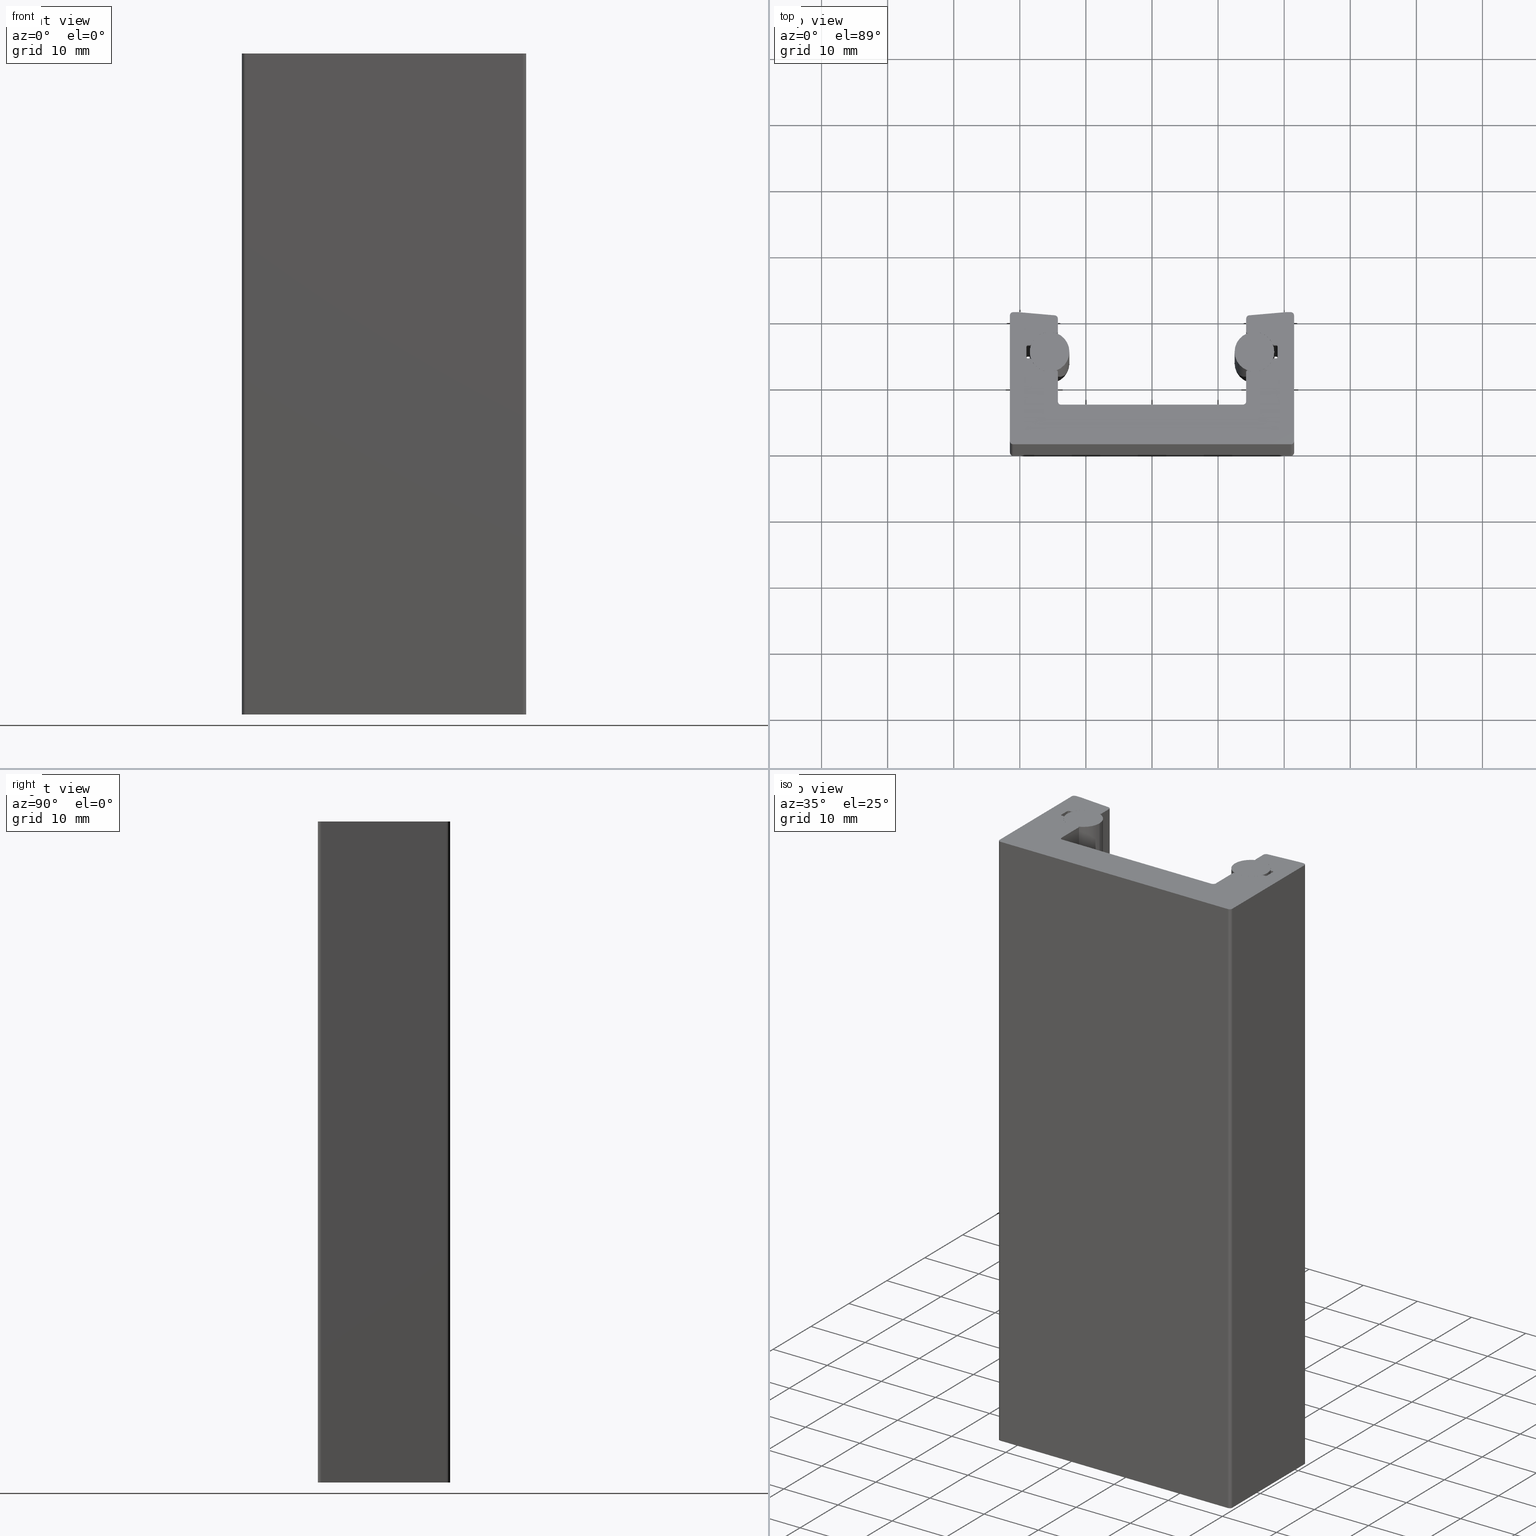
[diagram: canonical four-view strip — front | top / right | iso, engineering-drawing reading convention]
A machine part, canonical four-view strip (front | top / right | iso — engineering-drawing reading convention). The complete STEP part file that produces these views, byte-faithful:
ISO-10303-21;
HEADER;
/* Generated by software containing ST-Developer
 * from STEP Tools, Inc. (www.steptools.com) 
 */

FILE_DESCRIPTION(
/* description */ ('PROF.GUIDA  IL43'),
/* implementation_level */ '2;1');

FILE_NAME(
/* name */ 
'C:\\Users\\tecnico5\\Desktop\\SITOWEB\\BPRGD0000015\\DM01.IL43.00.stp',

/* time_stamp */ '2022-07-26T16:49:24+02:00',
/* author */ ('tecnico3.vi'),
/* organization */ (''),
/* preprocessor_version */ 'ST-DEVELOPER v18.1',
/* originating_system */ 'Autodesk Inventor 2022',
/* authorisation */ '');

FILE_SCHEMA (('AUTOMOTIVE_DESIGN { 1 0 10303 214 3 1 1 }'));
ENDSEC;

DATA;
#10=MECHANICAL_DESIGN_GEOMETRIC_PRESENTATION_REPRESENTATION('',(#27,#28),
#1697);
#11=ITEM_DEFINED_TRANSFORMATION($,$,#1003,#1108);
#12=ITEM_DEFINED_TRANSFORMATION($,$,#1102,#1109);
#13=ITEM_DEFINED_TRANSFORMATION($,$,#1102,#1110);
#14=(
REPRESENTATION_RELATIONSHIP($,$,#1712,#1711)
REPRESENTATION_RELATIONSHIP_WITH_TRANSFORMATION(#11)
SHAPE_REPRESENTATION_RELATIONSHIP()
);
#15=(
REPRESENTATION_RELATIONSHIP($,$,#1713,#1711)
REPRESENTATION_RELATIONSHIP_WITH_TRANSFORMATION(#12)
SHAPE_REPRESENTATION_RELATIONSHIP()
);
#16=(
REPRESENTATION_RELATIONSHIP($,$,#1713,#1711)
REPRESENTATION_RELATIONSHIP_WITH_TRANSFORMATION(#13)
SHAPE_REPRESENTATION_RELATIONSHIP()
);
#17=CONTEXT_DEPENDENT_SHAPE_REPRESENTATION(#14,#1708);
#18=CONTEXT_DEPENDENT_SHAPE_REPRESENTATION(#15,#1709);
#19=CONTEXT_DEPENDENT_SHAPE_REPRESENTATION(#16,#1710);
#20=NEXT_ASSEMBLY_USAGE_OCCURRENCE('DM01.4320.00A:1','DM01.4320.00A:1',
'DM01.4320.00A:1',#1715,#1716,'DM01.4320.00A:1');
#21=NEXT_ASSEMBLY_USAGE_OCCURRENCE('DM03.006.00:1','DM03.006.00:1',
'DM03.006.00:1',#1715,#1717,'DM03.006.00:1');
#22=NEXT_ASSEMBLY_USAGE_OCCURRENCE('DM03.006.00:2','DM03.006.00:2',
'DM03.006.00:2',#1715,#1717,'DM03.006.00:2');
#23=SHAPE_REPRESENTATION_RELATIONSHIP('SRR','None',#1712,#25);
#24=SHAPE_REPRESENTATION_RELATIONSHIP('SRR','None',#1713,#26);
#25=ADVANCED_BREP_SHAPE_REPRESENTATION('',(#29),#1695);
#26=ADVANCED_BREP_SHAPE_REPRESENTATION('',(#30),#1696);
#27=STYLED_ITEM('',(#966),#29);
#28=STYLED_ITEM('',(#967),#30);
#29=MANIFOLD_SOLID_BREP('Solido1',#938);
#30=MANIFOLD_SOLID_BREP('Solido1',#939);
#31=PLANE('',#1007);
#32=PLANE('',#1008);
#33=PLANE('',#1036);
#34=PLANE('',#1037);
#35=PLANE('',#1040);
#36=PLANE('',#1043);
#37=PLANE('',#1048);
#38=PLANE('',#1055);
#39=PLANE('',#1058);
#40=PLANE('',#1061);
#41=PLANE('',#1068);
#42=PLANE('',#1071);
#43=PLANE('',#1072);
#44=PLANE('',#1085);
#45=PLANE('',#1088);
#46=PLANE('',#1092);
#47=PLANE('',#1094);
#48=PLANE('',#1096);
#49=PLANE('',#1100);
#50=PLANE('',#1101);
#51=PLANE('',#1103);
#52=PLANE('',#1107);
#53=FACE_OUTER_BOUND('',#102,.T.);
#54=FACE_OUTER_BOUND('',#103,.T.);
#55=FACE_OUTER_BOUND('',#104,.T.);
#56=FACE_OUTER_BOUND('',#105,.T.);
#57=FACE_OUTER_BOUND('',#106,.T.);
#58=FACE_OUTER_BOUND('',#107,.T.);
#59=FACE_OUTER_BOUND('',#108,.T.);
#60=FACE_OUTER_BOUND('',#109,.T.);
#61=FACE_OUTER_BOUND('',#110,.T.);
#62=FACE_OUTER_BOUND('',#111,.T.);
#63=FACE_OUTER_BOUND('',#112,.T.);
#64=FACE_OUTER_BOUND('',#113,.T.);
#65=FACE_OUTER_BOUND('',#114,.T.);
#66=FACE_OUTER_BOUND('',#115,.T.);
#67=FACE_OUTER_BOUND('',#116,.T.);
#68=FACE_OUTER_BOUND('',#117,.T.);
#69=FACE_OUTER_BOUND('',#118,.T.);
#70=FACE_OUTER_BOUND('',#119,.T.);
#71=FACE_OUTER_BOUND('',#120,.T.);
#72=FACE_OUTER_BOUND('',#121,.T.);
#73=FACE_OUTER_BOUND('',#122,.T.);
#74=FACE_OUTER_BOUND('',#123,.T.);
#75=FACE_OUTER_BOUND('',#124,.T.);
#76=FACE_OUTER_BOUND('',#125,.T.);
#77=FACE_OUTER_BOUND('',#126,.T.);
#78=FACE_OUTER_BOUND('',#127,.T.);
#79=FACE_OUTER_BOUND('',#128,.T.);
#80=FACE_OUTER_BOUND('',#129,.T.);
#81=FACE_OUTER_BOUND('',#130,.T.);
#82=FACE_OUTER_BOUND('',#131,.T.);
#83=FACE_OUTER_BOUND('',#132,.T.);
#84=FACE_OUTER_BOUND('',#133,.T.);
#85=FACE_OUTER_BOUND('',#134,.T.);
#86=FACE_OUTER_BOUND('',#135,.T.);
#87=FACE_OUTER_BOUND('',#136,.T.);
#88=FACE_OUTER_BOUND('',#137,.T.);
#89=FACE_OUTER_BOUND('',#138,.T.);
#90=FACE_OUTER_BOUND('',#139,.T.);
#91=FACE_OUTER_BOUND('',#140,.T.);
#92=FACE_OUTER_BOUND('',#141,.T.);
#93=FACE_OUTER_BOUND('',#142,.T.);
#94=FACE_OUTER_BOUND('',#143,.T.);
#95=FACE_OUTER_BOUND('',#144,.T.);
#96=FACE_OUTER_BOUND('',#145,.T.);
#97=FACE_OUTER_BOUND('',#146,.T.);
#98=FACE_OUTER_BOUND('',#147,.T.);
#99=FACE_OUTER_BOUND('',#148,.T.);
#100=FACE_OUTER_BOUND('',#149,.T.);
#101=FACE_OUTER_BOUND('',#150,.T.);
#102=EDGE_LOOP('',(#592,#593,#594,#595));
#103=EDGE_LOOP('',(#596,#597,#598,#599));
#104=EDGE_LOOP('',(#600,#601,#602,#603,#604,#605,#606,#607,#608,#609,#610,
#611,#612,#613,#614,#615,#616,#617,#618,#619,#620,#621,#622,#623,#624,#625,
#626,#627,#628,#629,#630,#631,#632,#633,#634,#635,#636,#637,#638,#639,#640,
#641,#642,#643));
#105=EDGE_LOOP('',(#644,#645,#646,#647));
#106=EDGE_LOOP('',(#648,#649,#650,#651));
#107=EDGE_LOOP('',(#652,#653,#654,#655));
#108=EDGE_LOOP('',(#656,#657,#658,#659));
#109=EDGE_LOOP('',(#660,#661,#662,#663));
#110=EDGE_LOOP('',(#664,#665,#666,#667));
#111=EDGE_LOOP('',(#668,#669,#670,#671));
#112=EDGE_LOOP('',(#672,#673,#674,#675));
#113=EDGE_LOOP('',(#676,#677,#678,#679));
#114=EDGE_LOOP('',(#680,#681,#682,#683));
#115=EDGE_LOOP('',(#684,#685,#686,#687));
#116=EDGE_LOOP('',(#688,#689,#690,#691));
#117=EDGE_LOOP('',(#692,#693,#694,#695));
#118=EDGE_LOOP('',(#696,#697,#698,#699));
#119=EDGE_LOOP('',(#700,#701,#702,#703));
#120=EDGE_LOOP('',(#704,#705,#706,#707));
#121=EDGE_LOOP('',(#708,#709,#710,#711));
#122=EDGE_LOOP('',(#712,#713,#714,#715));
#123=EDGE_LOOP('',(#716,#717,#718,#719));
#124=EDGE_LOOP('',(#720,#721,#722,#723));
#125=EDGE_LOOP('',(#724,#725,#726,#727));
#126=EDGE_LOOP('',(#728,#729,#730,#731));
#127=EDGE_LOOP('',(#732,#733,#734,#735));
#128=EDGE_LOOP('',(#736,#737,#738,#739));
#129=EDGE_LOOP('',(#740,#741,#742,#743,#744,#745,#746,#747,#748,#749,#750,
#751,#752,#753,#754,#755,#756,#757,#758,#759,#760,#761,#762,#763,#764,#765,
#766,#767,#768,#769,#770,#771,#772,#773,#774,#775,#776,#777,#778,#779,#780,
#781,#782,#783));
#130=EDGE_LOOP('',(#784,#785,#786,#787));
#131=EDGE_LOOP('',(#788,#789,#790,#791));
#132=EDGE_LOOP('',(#792,#793,#794,#795));
#133=EDGE_LOOP('',(#796,#797,#798,#799));
#134=EDGE_LOOP('',(#800,#801,#802,#803));
#135=EDGE_LOOP('',(#804,#805,#806,#807));
#136=EDGE_LOOP('',(#808,#809,#810,#811));
#137=EDGE_LOOP('',(#812,#813,#814,#815));
#138=EDGE_LOOP('',(#816,#817,#818,#819));
#139=EDGE_LOOP('',(#820,#821,#822,#823));
#140=EDGE_LOOP('',(#824,#825,#826,#827));
#141=EDGE_LOOP('',(#828,#829,#830,#831));
#142=EDGE_LOOP('',(#832,#833,#834,#835));
#143=EDGE_LOOP('',(#836,#837,#838,#839));
#144=EDGE_LOOP('',(#840,#841,#842,#843));
#145=EDGE_LOOP('',(#844,#845,#846,#847));
#146=EDGE_LOOP('',(#848,#849,#850,#851));
#147=EDGE_LOOP('',(#852,#853,#854,#855));
#148=EDGE_LOOP('',(#856));
#149=EDGE_LOOP('',(#857,#858,#859,#860));
#150=EDGE_LOOP('',(#861));
#151=LINE('',#1417,#232);
#152=LINE('',#1420,#233);
#153=LINE('',#1423,#234);
#154=LINE('',#1425,#235);
#155=LINE('',#1426,#236);
#156=LINE('',#1429,#237);
#157=LINE('',#1433,#238);
#158=LINE('',#1437,#239);
#159=LINE('',#1441,#240);
#160=LINE('',#1445,#241);
#161=LINE('',#1453,#242);
#162=LINE('',#1457,#243);
#163=LINE('',#1461,#244);
#164=LINE('',#1469,#245);
#165=LINE('',#1473,#246);
#166=LINE('',#1477,#247);
#167=LINE('',#1485,#248);
#168=LINE('',#1489,#249);
#169=LINE('',#1493,#250);
#170=LINE('',#1501,#251);
#171=LINE('',#1505,#252);
#172=LINE('',#1509,#253);
#173=LINE('',#1515,#254);
#174=LINE('',#1516,#255);
#175=LINE('',#1519,#256);
#176=LINE('',#1520,#257);
#177=LINE('',#1522,#258);
#178=LINE('',#1525,#259);
#179=LINE('',#1528,#260);
#180=LINE('',#1531,#261);
#181=LINE('',#1532,#262);
#182=LINE('',#1536,#263);
#183=LINE('',#1539,#264);
#184=LINE('',#1540,#265);
#185=LINE('',#1543,#266);
#186=LINE('',#1549,#267);
#187=LINE('',#1550,#268);
#188=LINE('',#1553,#269);
#189=LINE('',#1554,#270);
#190=LINE('',#1558,#271);
#191=LINE('',#1562,#272);
#192=LINE('',#1566,#273);
#193=LINE('',#1569,#274);
#194=LINE('',#1570,#275);
#195=LINE('',#1574,#276);
#196=LINE('',#1577,#277);
#197=LINE('',#1578,#278);
#198=LINE('',#1582,#279);
#199=LINE('',#1585,#280);
#200=LINE('',#1586,#281);
#201=LINE('',#1590,#282);
#202=LINE('',#1594,#283);
#203=LINE('',#1598,#284);
#204=LINE('',#1601,#285);
#205=LINE('',#1604,#286);
#206=LINE('',#1607,#287);
#207=LINE('',#1608,#288);
#208=LINE('',#1610,#289);
#209=LINE('',#1618,#290);
#210=LINE('',#1622,#291);
#211=LINE('',#1626,#292);
#212=LINE('',#1634,#293);
#213=LINE('',#1638,#294);
#214=LINE('',#1642,#295);
#215=LINE('',#1645,#296);
#216=LINE('',#1647,#297);
#217=LINE('',#1649,#298);
#218=LINE('',#1651,#299);
#219=LINE('',#1652,#300);
#220=LINE('',#1654,#301);
#221=LINE('',#1656,#302);
#222=LINE('',#1658,#303);
#223=LINE('',#1660,#304);
#224=LINE('',#1662,#305);
#225=LINE('',#1664,#306);
#226=LINE('',#1666,#307);
#227=LINE('',#1668,#308);
#228=LINE('',#1670,#309);
#229=LINE('',#1672,#310);
#230=LINE('',#1674,#311);
#231=LINE('',#1685,#312);
#232=VECTOR('',#1119,10.);
#233=VECTOR('',#1122,10.);
#234=VECTOR('',#1125,10.);
#235=VECTOR('',#1126,10.);
#236=VECTOR('',#1127,10.);
#237=VECTOR('',#1130,10.);
#238=VECTOR('',#1133,10.);
#239=VECTOR('',#1136,10.);
#240=VECTOR('',#1139,10.);
#241=VECTOR('',#1142,10.);
#242=VECTOR('',#1149,10.);
#243=VECTOR('',#1152,10.);
#244=VECTOR('',#1155,10.);
#245=VECTOR('',#1162,10.);
#246=VECTOR('',#1165,10.);
#247=VECTOR('',#1168,10.);
#248=VECTOR('',#1175,10.);
#249=VECTOR('',#1178,10.);
#250=VECTOR('',#1181,10.);
#251=VECTOR('',#1188,10.);
#252=VECTOR('',#1191,10.);
#253=VECTOR('',#1194,10.);
#254=VECTOR('',#1201,10.);
#255=VECTOR('',#1202,10.);
#256=VECTOR('',#1205,10.);
#257=VECTOR('',#1206,10.);
#258=VECTOR('',#1209,10.);
#259=VECTOR('',#1212,10.);
#260=VECTOR('',#1215,10.);
#261=VECTOR('',#1218,10.);
#262=VECTOR('',#1219,10.);
#263=VECTOR('',#1224,10.);
#264=VECTOR('',#1227,10.);
#265=VECTOR('',#1228,10.);
#266=VECTOR('',#1231,10.);
#267=VECTOR('',#1238,10.);
#268=VECTOR('',#1239,10.);
#269=VECTOR('',#1242,10.);
#270=VECTOR('',#1243,10.);
#271=VECTOR('',#1248,10.);
#272=VECTOR('',#1253,10.);
#273=VECTOR('',#1258,10.);
#274=VECTOR('',#1261,10.);
#275=VECTOR('',#1262,10.);
#276=VECTOR('',#1267,10.);
#277=VECTOR('',#1270,10.);
#278=VECTOR('',#1271,10.);
#279=VECTOR('',#1276,10.);
#280=VECTOR('',#1279,10.);
#281=VECTOR('',#1280,10.);
#282=VECTOR('',#1285,10.);
#283=VECTOR('',#1290,10.);
#284=VECTOR('',#1297,10.);
#285=VECTOR('',#1300,10.);
#286=VECTOR('',#1303,10.);
#287=VECTOR('',#1306,10.);
#288=VECTOR('',#1307,10.);
#289=VECTOR('',#1310,10.);
#290=VECTOR('',#1317,10.);
#291=VECTOR('',#1320,10.);
#292=VECTOR('',#1323,10.);
#293=VECTOR('',#1330,10.);
#294=VECTOR('',#1333,10.);
#295=VECTOR('',#1336,10.);
#296=VECTOR('',#1341,10.);
#297=VECTOR('',#1344,10.);
#298=VECTOR('',#1347,10.);
#299=VECTOR('',#1350,10.);
#300=VECTOR('',#1351,10.);
#301=VECTOR('',#1354,10.);
#302=VECTOR('',#1357,10.);
#303=VECTOR('',#1360,10.);
#304=VECTOR('',#1363,10.);
#305=VECTOR('',#1366,10.);
#306=VECTOR('',#1369,10.);
#307=VECTOR('',#1372,10.);
#308=VECTOR('',#1375,10.);
#309=VECTOR('',#1378,10.);
#310=VECTOR('',#1381,10.);
#311=VECTOR('',#1384,10.);
#312=VECTOR('',#1401,3.);
#313=CIRCLE('',#1005,0.5);
#314=CIRCLE('',#1006,0.5);
#315=CIRCLE('',#1009,0.5);
#316=CIRCLE('',#1010,0.5);
#317=CIRCLE('',#1011,0.5);
#318=CIRCLE('',#1012,0.5);
#319=CIRCLE('',#1013,0.2);
#320=CIRCLE('',#1014,3.);
#321=CIRCLE('',#1015,0.2);
#322=CIRCLE('',#1016,0.2);
#323=CIRCLE('',#1017,0.2);
#324=CIRCLE('',#1018,0.2);
#325=CIRCLE('',#1019,3.);
#326=CIRCLE('',#1020,0.2);
#327=CIRCLE('',#1021,0.5);
#328=CIRCLE('',#1022,0.5);
#329=CIRCLE('',#1023,0.2);
#330=CIRCLE('',#1024,3.);
#331=CIRCLE('',#1025,0.2);
#332=CIRCLE('',#1026,0.2);
#333=CIRCLE('',#1027,0.2);
#334=CIRCLE('',#1028,0.2);
#335=CIRCLE('',#1029,3.);
#336=CIRCLE('',#1030,0.2);
#337=CIRCLE('',#1031,0.5);
#338=CIRCLE('',#1032,0.5);
#339=CIRCLE('',#1033,0.5);
#340=CIRCLE('',#1035,0.5);
#341=CIRCLE('',#1039,0.5);
#342=CIRCLE('',#1042,0.5);
#343=CIRCLE('',#1045,0.5);
#344=CIRCLE('',#1047,0.5);
#345=CIRCLE('',#1050,0.2);
#346=CIRCLE('',#1052,3.);
#347=CIRCLE('',#1054,0.2);
#348=CIRCLE('',#1057,0.2);
#349=CIRCLE('',#1060,0.2);
#350=CIRCLE('',#1063,0.2);
#351=CIRCLE('',#1065,3.);
#352=CIRCLE('',#1067,0.2);
#353=CIRCLE('',#1070,0.5);
#354=CIRCLE('',#1073,0.2);
#355=CIRCLE('',#1074,3.);
#356=CIRCLE('',#1075,0.2);
#357=CIRCLE('',#1076,0.2);
#358=CIRCLE('',#1077,0.2);
#359=CIRCLE('',#1078,0.2);
#360=CIRCLE('',#1079,3.);
#361=CIRCLE('',#1080,0.2);
#362=CIRCLE('',#1081,0.5);
#363=CIRCLE('',#1082,0.5);
#364=CIRCLE('',#1083,0.5);
#365=CIRCLE('',#1104,3.);
#366=CIRCLE('',#1106,3.);
#367=VERTEX_POINT('',#1413);
#368=VERTEX_POINT('',#1414);
#369=VERTEX_POINT('',#1416);
#370=VERTEX_POINT('',#1418);
#371=VERTEX_POINT('',#1422);
#372=VERTEX_POINT('',#1424);
#373=VERTEX_POINT('',#1428);
#374=VERTEX_POINT('',#1430);
#375=VERTEX_POINT('',#1432);
#376=VERTEX_POINT('',#1434);
#377=VERTEX_POINT('',#1436);
#378=VERTEX_POINT('',#1438);
#379=VERTEX_POINT('',#1440);
#380=VERTEX_POINT('',#1442);
#381=VERTEX_POINT('',#1444);
#382=VERTEX_POINT('',#1446);
#383=VERTEX_POINT('',#1448);
#384=VERTEX_POINT('',#1450);
#385=VERTEX_POINT('',#1452);
#386=VERTEX_POINT('',#1454);
#387=VERTEX_POINT('',#1456);
#388=VERTEX_POINT('',#1458);
#389=VERTEX_POINT('',#1460);
#390=VERTEX_POINT('',#1462);
#391=VERTEX_POINT('',#1464);
#392=VERTEX_POINT('',#1466);
#393=VERTEX_POINT('',#1468);
#394=VERTEX_POINT('',#1470);
#395=VERTEX_POINT('',#1472);
#396=VERTEX_POINT('',#1474);
#397=VERTEX_POINT('',#1476);
#398=VERTEX_POINT('',#1478);
#399=VERTEX_POINT('',#1480);
#400=VERTEX_POINT('',#1482);
#401=VERTEX_POINT('',#1484);
#402=VERTEX_POINT('',#1486);
#403=VERTEX_POINT('',#1488);
#404=VERTEX_POINT('',#1490);
#405=VERTEX_POINT('',#1492);
#406=VERTEX_POINT('',#1494);
#407=VERTEX_POINT('',#1496);
#408=VERTEX_POINT('',#1498);
#409=VERTEX_POINT('',#1500);
#410=VERTEX_POINT('',#1502);
#411=VERTEX_POINT('',#1504);
#412=VERTEX_POINT('',#1506);
#413=VERTEX_POINT('',#1508);
#414=VERTEX_POINT('',#1512);
#415=VERTEX_POINT('',#1513);
#416=VERTEX_POINT('',#1518);
#417=VERTEX_POINT('',#1524);
#418=VERTEX_POINT('',#1526);
#419=VERTEX_POINT('',#1530);
#420=VERTEX_POINT('',#1534);
#421=VERTEX_POINT('',#1538);
#422=VERTEX_POINT('',#1542);
#423=VERTEX_POINT('',#1546);
#424=VERTEX_POINT('',#1547);
#425=VERTEX_POINT('',#1552);
#426=VERTEX_POINT('',#1556);
#427=VERTEX_POINT('',#1560);
#428=VERTEX_POINT('',#1564);
#429=VERTEX_POINT('',#1568);
#430=VERTEX_POINT('',#1572);
#431=VERTEX_POINT('',#1576);
#432=VERTEX_POINT('',#1580);
#433=VERTEX_POINT('',#1584);
#434=VERTEX_POINT('',#1588);
#435=VERTEX_POINT('',#1592);
#436=VERTEX_POINT('',#1600);
#437=VERTEX_POINT('',#1602);
#438=VERTEX_POINT('',#1606);
#439=VERTEX_POINT('',#1611);
#440=VERTEX_POINT('',#1613);
#441=VERTEX_POINT('',#1615);
#442=VERTEX_POINT('',#1617);
#443=VERTEX_POINT('',#1619);
#444=VERTEX_POINT('',#1621);
#445=VERTEX_POINT('',#1623);
#446=VERTEX_POINT('',#1625);
#447=VERTEX_POINT('',#1627);
#448=VERTEX_POINT('',#1629);
#449=VERTEX_POINT('',#1631);
#450=VERTEX_POINT('',#1633);
#451=VERTEX_POINT('',#1635);
#452=VERTEX_POINT('',#1637);
#453=VERTEX_POINT('',#1639);
#454=VERTEX_POINT('',#1641);
#455=VERTEX_POINT('',#1680);
#456=VERTEX_POINT('',#1683);
#457=EDGE_CURVE('',#367,#368,#313,.T.);
#458=EDGE_CURVE('',#368,#369,#151,.T.);
#459=EDGE_CURVE('',#369,#370,#314,.T.);
#460=EDGE_CURVE('',#370,#367,#152,.T.);
#461=EDGE_CURVE('',#370,#371,#153,.T.);
#462=EDGE_CURVE('',#371,#372,#154,.T.);
#463=EDGE_CURVE('',#372,#367,#155,.T.);
#464=EDGE_CURVE('',#373,#369,#156,.T.);
#465=EDGE_CURVE('',#374,#373,#315,.T.);
#466=EDGE_CURVE('',#374,#375,#157,.T.);
#467=EDGE_CURVE('',#376,#375,#316,.T.);
#468=EDGE_CURVE('',#376,#377,#158,.T.);
#469=EDGE_CURVE('',#378,#377,#317,.T.);
#470=EDGE_CURVE('',#378,#379,#159,.T.);
#471=EDGE_CURVE('',#380,#379,#318,.T.);
#472=EDGE_CURVE('',#380,#381,#160,.T.);
#473=EDGE_CURVE('',#382,#381,#319,.T.);
#474=EDGE_CURVE('',#382,#383,#320,.T.);
#475=EDGE_CURVE('',#384,#383,#321,.T.);
#476=EDGE_CURVE('',#384,#385,#161,.T.);
#477=EDGE_CURVE('',#386,#385,#322,.T.);
#478=EDGE_CURVE('',#386,#387,#162,.T.);
#479=EDGE_CURVE('',#388,#387,#323,.T.);
#480=EDGE_CURVE('',#388,#389,#163,.T.);
#481=EDGE_CURVE('',#390,#389,#324,.T.);
#482=EDGE_CURVE('',#390,#391,#325,.T.);
#483=EDGE_CURVE('',#392,#391,#326,.T.);
#484=EDGE_CURVE('',#392,#393,#164,.T.);
#485=EDGE_CURVE('',#394,#393,#327,.T.);
#486=EDGE_CURVE('',#395,#394,#165,.T.);
#487=EDGE_CURVE('',#395,#396,#328,.T.);
#488=EDGE_CURVE('',#397,#396,#166,.T.);
#489=EDGE_CURVE('',#397,#398,#329,.T.);
#490=EDGE_CURVE('',#399,#398,#330,.T.);
#491=EDGE_CURVE('',#399,#400,#331,.T.);
#492=EDGE_CURVE('',#401,#400,#167,.T.);
#493=EDGE_CURVE('',#401,#402,#332,.T.);
#494=EDGE_CURVE('',#403,#402,#168,.T.);
#495=EDGE_CURVE('',#403,#404,#333,.T.);
#496=EDGE_CURVE('',#405,#404,#169,.T.);
#497=EDGE_CURVE('',#405,#406,#334,.T.);
#498=EDGE_CURVE('',#407,#406,#335,.T.);
#499=EDGE_CURVE('',#407,#408,#336,.T.);
#500=EDGE_CURVE('',#409,#408,#170,.T.);
#501=EDGE_CURVE('',#409,#410,#337,.T.);
#502=EDGE_CURVE('',#411,#410,#171,.T.);
#503=EDGE_CURVE('',#411,#412,#338,.T.);
#504=EDGE_CURVE('',#413,#412,#172,.T.);
#505=EDGE_CURVE('',#413,#371,#339,.T.);
#506=EDGE_CURVE('',#414,#415,#340,.T.);
#507=EDGE_CURVE('',#415,#374,#173,.T.);
#508=EDGE_CURVE('',#373,#414,#174,.T.);
#509=EDGE_CURVE('',#416,#415,#175,.T.);
#510=EDGE_CURVE('',#375,#416,#176,.T.);
#511=EDGE_CURVE('',#414,#368,#177,.T.);
#512=EDGE_CURVE('',#417,#395,#178,.T.);
#513=EDGE_CURVE('',#418,#417,#341,.T.);
#514=EDGE_CURVE('',#396,#418,#179,.T.);
#515=EDGE_CURVE('',#418,#419,#180,.T.);
#516=EDGE_CURVE('',#419,#397,#181,.T.);
#517=EDGE_CURVE('',#372,#420,#342,.T.);
#518=EDGE_CURVE('',#420,#413,#182,.T.);
#519=EDGE_CURVE('',#412,#421,#183,.T.);
#520=EDGE_CURVE('',#421,#420,#184,.T.);
#521=EDGE_CURVE('',#422,#411,#185,.T.);
#522=EDGE_CURVE('',#421,#422,#343,.T.);
#523=EDGE_CURVE('',#423,#424,#344,.T.);
#524=EDGE_CURVE('',#410,#423,#186,.T.);
#525=EDGE_CURVE('',#424,#409,#187,.T.);
#526=EDGE_CURVE('',#408,#425,#188,.T.);
#527=EDGE_CURVE('',#425,#424,#189,.T.);
#528=EDGE_CURVE('',#426,#419,#345,.T.);
#529=EDGE_CURVE('',#398,#426,#190,.T.);
#530=EDGE_CURVE('',#426,#427,#346,.T.);
#531=EDGE_CURVE('',#427,#399,#191,.T.);
#532=EDGE_CURVE('',#428,#427,#347,.T.);
#533=EDGE_CURVE('',#400,#428,#192,.T.);
#534=EDGE_CURVE('',#428,#429,#193,.T.);
#535=EDGE_CURVE('',#429,#401,#194,.T.);
#536=EDGE_CURVE('',#430,#429,#348,.T.);
#537=EDGE_CURVE('',#402,#430,#195,.T.);
#538=EDGE_CURVE('',#430,#431,#196,.T.);
#539=EDGE_CURVE('',#431,#403,#197,.T.);
#540=EDGE_CURVE('',#432,#431,#349,.T.);
#541=EDGE_CURVE('',#404,#432,#198,.T.);
#542=EDGE_CURVE('',#432,#433,#199,.T.);
#543=EDGE_CURVE('',#433,#405,#200,.T.);
#544=EDGE_CURVE('',#434,#433,#350,.T.);
#545=EDGE_CURVE('',#406,#434,#201,.T.);
#546=EDGE_CURVE('',#434,#435,#351,.T.);
#547=EDGE_CURVE('',#435,#407,#202,.T.);
#548=EDGE_CURVE('',#425,#435,#352,.T.);
#549=EDGE_CURVE('',#423,#422,#203,.T.);
#550=EDGE_CURVE('',#393,#436,#204,.T.);
#551=EDGE_CURVE('',#436,#437,#353,.T.);
#552=EDGE_CURVE('',#437,#394,#205,.T.);
#553=EDGE_CURVE('',#438,#392,#206,.T.);
#554=EDGE_CURVE('',#436,#438,#207,.T.);
#555=EDGE_CURVE('',#417,#437,#208,.T.);
#556=EDGE_CURVE('',#439,#438,#354,.T.);
#557=EDGE_CURVE('',#439,#440,#355,.T.);
#558=EDGE_CURVE('',#441,#440,#356,.T.);
#559=EDGE_CURVE('',#441,#442,#209,.T.);
#560=EDGE_CURVE('',#443,#442,#357,.T.);
#561=EDGE_CURVE('',#443,#444,#210,.T.);
#562=EDGE_CURVE('',#445,#444,#358,.T.);
#563=EDGE_CURVE('',#445,#446,#211,.T.);
#564=EDGE_CURVE('',#447,#446,#359,.T.);
#565=EDGE_CURVE('',#447,#448,#360,.T.);
#566=EDGE_CURVE('',#449,#448,#361,.T.);
#567=EDGE_CURVE('',#449,#450,#212,.T.);
#568=EDGE_CURVE('',#451,#450,#362,.T.);
#569=EDGE_CURVE('',#451,#452,#213,.T.);
#570=EDGE_CURVE('',#453,#452,#363,.T.);
#571=EDGE_CURVE('',#453,#454,#214,.T.);
#572=EDGE_CURVE('',#416,#454,#364,.T.);
#573=EDGE_CURVE('',#454,#376,#215,.T.);
#574=EDGE_CURVE('',#377,#453,#216,.T.);
#575=EDGE_CURVE('',#452,#378,#217,.T.);
#576=EDGE_CURVE('',#450,#380,#218,.T.);
#577=EDGE_CURVE('',#379,#451,#219,.T.);
#578=EDGE_CURVE('',#381,#449,#220,.T.);
#579=EDGE_CURVE('',#391,#439,#221,.T.);
#580=EDGE_CURVE('',#440,#390,#222,.T.);
#581=EDGE_CURVE('',#389,#441,#223,.T.);
#582=EDGE_CURVE('',#442,#388,#224,.T.);
#583=EDGE_CURVE('',#387,#443,#225,.T.);
#584=EDGE_CURVE('',#444,#386,#226,.T.);
#585=EDGE_CURVE('',#385,#445,#227,.T.);
#586=EDGE_CURVE('',#446,#384,#228,.T.);
#587=EDGE_CURVE('',#383,#447,#229,.T.);
#588=EDGE_CURVE('',#448,#382,#230,.T.);
#589=EDGE_CURVE('',#455,#455,#365,.T.);
#590=EDGE_CURVE('',#456,#456,#366,.T.);
#591=EDGE_CURVE('',#456,#455,#231,.T.);
#592=ORIENTED_EDGE('',*,*,#457,.T.);
#593=ORIENTED_EDGE('',*,*,#458,.T.);
#594=ORIENTED_EDGE('',*,*,#459,.T.);
#595=ORIENTED_EDGE('',*,*,#460,.T.);
#596=ORIENTED_EDGE('',*,*,#460,.F.);
#597=ORIENTED_EDGE('',*,*,#461,.T.);
#598=ORIENTED_EDGE('',*,*,#462,.T.);
#599=ORIENTED_EDGE('',*,*,#463,.T.);
#600=ORIENTED_EDGE('',*,*,#459,.F.);
#601=ORIENTED_EDGE('',*,*,#464,.F.);
#602=ORIENTED_EDGE('',*,*,#465,.F.);
#603=ORIENTED_EDGE('',*,*,#466,.T.);
#604=ORIENTED_EDGE('',*,*,#467,.F.);
#605=ORIENTED_EDGE('',*,*,#468,.T.);
#606=ORIENTED_EDGE('',*,*,#469,.F.);
#607=ORIENTED_EDGE('',*,*,#470,.T.);
#608=ORIENTED_EDGE('',*,*,#471,.F.);
#609=ORIENTED_EDGE('',*,*,#472,.T.);
#610=ORIENTED_EDGE('',*,*,#473,.F.);
#611=ORIENTED_EDGE('',*,*,#474,.T.);
#612=ORIENTED_EDGE('',*,*,#475,.F.);
#613=ORIENTED_EDGE('',*,*,#476,.T.);
#614=ORIENTED_EDGE('',*,*,#477,.F.);
#615=ORIENTED_EDGE('',*,*,#478,.T.);
#616=ORIENTED_EDGE('',*,*,#479,.F.);
#617=ORIENTED_EDGE('',*,*,#480,.T.);
#618=ORIENTED_EDGE('',*,*,#481,.F.);
#619=ORIENTED_EDGE('',*,*,#482,.T.);
#620=ORIENTED_EDGE('',*,*,#483,.F.);
#621=ORIENTED_EDGE('',*,*,#484,.T.);
#622=ORIENTED_EDGE('',*,*,#485,.F.);
#623=ORIENTED_EDGE('',*,*,#486,.F.);
#624=ORIENTED_EDGE('',*,*,#487,.T.);
#625=ORIENTED_EDGE('',*,*,#488,.F.);
#626=ORIENTED_EDGE('',*,*,#489,.T.);
#627=ORIENTED_EDGE('',*,*,#490,.F.);
#628=ORIENTED_EDGE('',*,*,#491,.T.);
#629=ORIENTED_EDGE('',*,*,#492,.F.);
#630=ORIENTED_EDGE('',*,*,#493,.T.);
#631=ORIENTED_EDGE('',*,*,#494,.F.);
#632=ORIENTED_EDGE('',*,*,#495,.T.);
#633=ORIENTED_EDGE('',*,*,#496,.F.);
#634=ORIENTED_EDGE('',*,*,#497,.T.);
#635=ORIENTED_EDGE('',*,*,#498,.F.);
#636=ORIENTED_EDGE('',*,*,#499,.T.);
#637=ORIENTED_EDGE('',*,*,#500,.F.);
#638=ORIENTED_EDGE('',*,*,#501,.T.);
#639=ORIENTED_EDGE('',*,*,#502,.F.);
#640=ORIENTED_EDGE('',*,*,#503,.T.);
#641=ORIENTED_EDGE('',*,*,#504,.F.);
#642=ORIENTED_EDGE('',*,*,#505,.T.);
#643=ORIENTED_EDGE('',*,*,#461,.F.);
#644=ORIENTED_EDGE('',*,*,#506,.T.);
#645=ORIENTED_EDGE('',*,*,#507,.T.);
#646=ORIENTED_EDGE('',*,*,#465,.T.);
#647=ORIENTED_EDGE('',*,*,#508,.T.);
#648=ORIENTED_EDGE('',*,*,#507,.F.);
#649=ORIENTED_EDGE('',*,*,#509,.F.);
#650=ORIENTED_EDGE('',*,*,#510,.F.);
#651=ORIENTED_EDGE('',*,*,#466,.F.);
#652=ORIENTED_EDGE('',*,*,#458,.F.);
#653=ORIENTED_EDGE('',*,*,#511,.F.);
#654=ORIENTED_EDGE('',*,*,#508,.F.);
#655=ORIENTED_EDGE('',*,*,#464,.T.);
#656=ORIENTED_EDGE('',*,*,#487,.F.);
#657=ORIENTED_EDGE('',*,*,#512,.F.);
#658=ORIENTED_EDGE('',*,*,#513,.F.);
#659=ORIENTED_EDGE('',*,*,#514,.F.);
#660=ORIENTED_EDGE('',*,*,#514,.T.);
#661=ORIENTED_EDGE('',*,*,#515,.T.);
#662=ORIENTED_EDGE('',*,*,#516,.T.);
#663=ORIENTED_EDGE('',*,*,#488,.T.);
#664=ORIENTED_EDGE('',*,*,#517,.F.);
#665=ORIENTED_EDGE('',*,*,#462,.F.);
#666=ORIENTED_EDGE('',*,*,#505,.F.);
#667=ORIENTED_EDGE('',*,*,#518,.F.);
#668=ORIENTED_EDGE('',*,*,#518,.T.);
#669=ORIENTED_EDGE('',*,*,#504,.T.);
#670=ORIENTED_EDGE('',*,*,#519,.T.);
#671=ORIENTED_EDGE('',*,*,#520,.T.);
#672=ORIENTED_EDGE('',*,*,#503,.F.);
#673=ORIENTED_EDGE('',*,*,#521,.F.);
#674=ORIENTED_EDGE('',*,*,#522,.F.);
#675=ORIENTED_EDGE('',*,*,#519,.F.);
#676=ORIENTED_EDGE('',*,*,#523,.F.);
#677=ORIENTED_EDGE('',*,*,#524,.F.);
#678=ORIENTED_EDGE('',*,*,#501,.F.);
#679=ORIENTED_EDGE('',*,*,#525,.F.);
#680=ORIENTED_EDGE('',*,*,#525,.T.);
#681=ORIENTED_EDGE('',*,*,#500,.T.);
#682=ORIENTED_EDGE('',*,*,#526,.T.);
#683=ORIENTED_EDGE('',*,*,#527,.T.);
#684=ORIENTED_EDGE('',*,*,#528,.F.);
#685=ORIENTED_EDGE('',*,*,#529,.F.);
#686=ORIENTED_EDGE('',*,*,#489,.F.);
#687=ORIENTED_EDGE('',*,*,#516,.F.);
#688=ORIENTED_EDGE('',*,*,#529,.T.);
#689=ORIENTED_EDGE('',*,*,#530,.T.);
#690=ORIENTED_EDGE('',*,*,#531,.T.);
#691=ORIENTED_EDGE('',*,*,#490,.T.);
#692=ORIENTED_EDGE('',*,*,#532,.F.);
#693=ORIENTED_EDGE('',*,*,#533,.F.);
#694=ORIENTED_EDGE('',*,*,#491,.F.);
#695=ORIENTED_EDGE('',*,*,#531,.F.);
#696=ORIENTED_EDGE('',*,*,#533,.T.);
#697=ORIENTED_EDGE('',*,*,#534,.T.);
#698=ORIENTED_EDGE('',*,*,#535,.T.);
#699=ORIENTED_EDGE('',*,*,#492,.T.);
#700=ORIENTED_EDGE('',*,*,#493,.F.);
#701=ORIENTED_EDGE('',*,*,#535,.F.);
#702=ORIENTED_EDGE('',*,*,#536,.F.);
#703=ORIENTED_EDGE('',*,*,#537,.F.);
#704=ORIENTED_EDGE('',*,*,#537,.T.);
#705=ORIENTED_EDGE('',*,*,#538,.T.);
#706=ORIENTED_EDGE('',*,*,#539,.T.);
#707=ORIENTED_EDGE('',*,*,#494,.T.);
#708=ORIENTED_EDGE('',*,*,#495,.F.);
#709=ORIENTED_EDGE('',*,*,#539,.F.);
#710=ORIENTED_EDGE('',*,*,#540,.F.);
#711=ORIENTED_EDGE('',*,*,#541,.F.);
#712=ORIENTED_EDGE('',*,*,#541,.T.);
#713=ORIENTED_EDGE('',*,*,#542,.T.);
#714=ORIENTED_EDGE('',*,*,#543,.T.);
#715=ORIENTED_EDGE('',*,*,#496,.T.);
#716=ORIENTED_EDGE('',*,*,#544,.F.);
#717=ORIENTED_EDGE('',*,*,#545,.F.);
#718=ORIENTED_EDGE('',*,*,#497,.F.);
#719=ORIENTED_EDGE('',*,*,#543,.F.);
#720=ORIENTED_EDGE('',*,*,#545,.T.);
#721=ORIENTED_EDGE('',*,*,#546,.T.);
#722=ORIENTED_EDGE('',*,*,#547,.T.);
#723=ORIENTED_EDGE('',*,*,#498,.T.);
#724=ORIENTED_EDGE('',*,*,#499,.F.);
#725=ORIENTED_EDGE('',*,*,#547,.F.);
#726=ORIENTED_EDGE('',*,*,#548,.F.);
#727=ORIENTED_EDGE('',*,*,#526,.F.);
#728=ORIENTED_EDGE('',*,*,#521,.T.);
#729=ORIENTED_EDGE('',*,*,#502,.T.);
#730=ORIENTED_EDGE('',*,*,#524,.T.);
#731=ORIENTED_EDGE('',*,*,#549,.T.);
#732=ORIENTED_EDGE('',*,*,#485,.T.);
#733=ORIENTED_EDGE('',*,*,#550,.T.);
#734=ORIENTED_EDGE('',*,*,#551,.T.);
#735=ORIENTED_EDGE('',*,*,#552,.T.);
#736=ORIENTED_EDGE('',*,*,#550,.F.);
#737=ORIENTED_EDGE('',*,*,#484,.F.);
#738=ORIENTED_EDGE('',*,*,#553,.F.);
#739=ORIENTED_EDGE('',*,*,#554,.F.);
#740=ORIENTED_EDGE('',*,*,#457,.F.);
#741=ORIENTED_EDGE('',*,*,#463,.F.);
#742=ORIENTED_EDGE('',*,*,#517,.T.);
#743=ORIENTED_EDGE('',*,*,#520,.F.);
#744=ORIENTED_EDGE('',*,*,#522,.T.);
#745=ORIENTED_EDGE('',*,*,#549,.F.);
#746=ORIENTED_EDGE('',*,*,#523,.T.);
#747=ORIENTED_EDGE('',*,*,#527,.F.);
#748=ORIENTED_EDGE('',*,*,#548,.T.);
#749=ORIENTED_EDGE('',*,*,#546,.F.);
#750=ORIENTED_EDGE('',*,*,#544,.T.);
#751=ORIENTED_EDGE('',*,*,#542,.F.);
#752=ORIENTED_EDGE('',*,*,#540,.T.);
#753=ORIENTED_EDGE('',*,*,#538,.F.);
#754=ORIENTED_EDGE('',*,*,#536,.T.);
#755=ORIENTED_EDGE('',*,*,#534,.F.);
#756=ORIENTED_EDGE('',*,*,#532,.T.);
#757=ORIENTED_EDGE('',*,*,#530,.F.);
#758=ORIENTED_EDGE('',*,*,#528,.T.);
#759=ORIENTED_EDGE('',*,*,#515,.F.);
#760=ORIENTED_EDGE('',*,*,#513,.T.);
#761=ORIENTED_EDGE('',*,*,#555,.T.);
#762=ORIENTED_EDGE('',*,*,#551,.F.);
#763=ORIENTED_EDGE('',*,*,#554,.T.);
#764=ORIENTED_EDGE('',*,*,#556,.F.);
#765=ORIENTED_EDGE('',*,*,#557,.T.);
#766=ORIENTED_EDGE('',*,*,#558,.F.);
#767=ORIENTED_EDGE('',*,*,#559,.T.);
#768=ORIENTED_EDGE('',*,*,#560,.F.);
#769=ORIENTED_EDGE('',*,*,#561,.T.);
#770=ORIENTED_EDGE('',*,*,#562,.F.);
#771=ORIENTED_EDGE('',*,*,#563,.T.);
#772=ORIENTED_EDGE('',*,*,#564,.F.);
#773=ORIENTED_EDGE('',*,*,#565,.T.);
#774=ORIENTED_EDGE('',*,*,#566,.F.);
#775=ORIENTED_EDGE('',*,*,#567,.T.);
#776=ORIENTED_EDGE('',*,*,#568,.F.);
#777=ORIENTED_EDGE('',*,*,#569,.T.);
#778=ORIENTED_EDGE('',*,*,#570,.F.);
#779=ORIENTED_EDGE('',*,*,#571,.T.);
#780=ORIENTED_EDGE('',*,*,#572,.F.);
#781=ORIENTED_EDGE('',*,*,#509,.T.);
#782=ORIENTED_EDGE('',*,*,#506,.F.);
#783=ORIENTED_EDGE('',*,*,#511,.T.);
#784=ORIENTED_EDGE('',*,*,#572,.T.);
#785=ORIENTED_EDGE('',*,*,#573,.T.);
#786=ORIENTED_EDGE('',*,*,#467,.T.);
#787=ORIENTED_EDGE('',*,*,#510,.T.);
#788=ORIENTED_EDGE('',*,*,#573,.F.);
#789=ORIENTED_EDGE('',*,*,#571,.F.);
#790=ORIENTED_EDGE('',*,*,#574,.F.);
#791=ORIENTED_EDGE('',*,*,#468,.F.);
#792=ORIENTED_EDGE('',*,*,#469,.T.);
#793=ORIENTED_EDGE('',*,*,#574,.T.);
#794=ORIENTED_EDGE('',*,*,#570,.T.);
#795=ORIENTED_EDGE('',*,*,#575,.T.);
#796=ORIENTED_EDGE('',*,*,#568,.T.);
#797=ORIENTED_EDGE('',*,*,#576,.T.);
#798=ORIENTED_EDGE('',*,*,#471,.T.);
#799=ORIENTED_EDGE('',*,*,#577,.T.);
#800=ORIENTED_EDGE('',*,*,#576,.F.);
#801=ORIENTED_EDGE('',*,*,#567,.F.);
#802=ORIENTED_EDGE('',*,*,#578,.F.);
#803=ORIENTED_EDGE('',*,*,#472,.F.);
#804=ORIENTED_EDGE('',*,*,#556,.T.);
#805=ORIENTED_EDGE('',*,*,#553,.T.);
#806=ORIENTED_EDGE('',*,*,#483,.T.);
#807=ORIENTED_EDGE('',*,*,#579,.T.);
#808=ORIENTED_EDGE('',*,*,#579,.F.);
#809=ORIENTED_EDGE('',*,*,#482,.F.);
#810=ORIENTED_EDGE('',*,*,#580,.F.);
#811=ORIENTED_EDGE('',*,*,#557,.F.);
#812=ORIENTED_EDGE('',*,*,#558,.T.);
#813=ORIENTED_EDGE('',*,*,#580,.T.);
#814=ORIENTED_EDGE('',*,*,#481,.T.);
#815=ORIENTED_EDGE('',*,*,#581,.T.);
#816=ORIENTED_EDGE('',*,*,#581,.F.);
#817=ORIENTED_EDGE('',*,*,#480,.F.);
#818=ORIENTED_EDGE('',*,*,#582,.F.);
#819=ORIENTED_EDGE('',*,*,#559,.F.);
#820=ORIENTED_EDGE('',*,*,#479,.T.);
#821=ORIENTED_EDGE('',*,*,#583,.T.);
#822=ORIENTED_EDGE('',*,*,#560,.T.);
#823=ORIENTED_EDGE('',*,*,#582,.T.);
#824=ORIENTED_EDGE('',*,*,#583,.F.);
#825=ORIENTED_EDGE('',*,*,#478,.F.);
#826=ORIENTED_EDGE('',*,*,#584,.F.);
#827=ORIENTED_EDGE('',*,*,#561,.F.);
#828=ORIENTED_EDGE('',*,*,#477,.T.);
#829=ORIENTED_EDGE('',*,*,#585,.T.);
#830=ORIENTED_EDGE('',*,*,#562,.T.);
#831=ORIENTED_EDGE('',*,*,#584,.T.);
#832=ORIENTED_EDGE('',*,*,#585,.F.);
#833=ORIENTED_EDGE('',*,*,#476,.F.);
#834=ORIENTED_EDGE('',*,*,#586,.F.);
#835=ORIENTED_EDGE('',*,*,#563,.F.);
#836=ORIENTED_EDGE('',*,*,#564,.T.);
#837=ORIENTED_EDGE('',*,*,#586,.T.);
#838=ORIENTED_EDGE('',*,*,#475,.T.);
#839=ORIENTED_EDGE('',*,*,#587,.T.);
#840=ORIENTED_EDGE('',*,*,#587,.F.);
#841=ORIENTED_EDGE('',*,*,#474,.F.);
#842=ORIENTED_EDGE('',*,*,#588,.F.);
#843=ORIENTED_EDGE('',*,*,#565,.F.);
#844=ORIENTED_EDGE('',*,*,#473,.T.);
#845=ORIENTED_EDGE('',*,*,#578,.T.);
#846=ORIENTED_EDGE('',*,*,#566,.T.);
#847=ORIENTED_EDGE('',*,*,#588,.T.);
#848=ORIENTED_EDGE('',*,*,#552,.F.);
#849=ORIENTED_EDGE('',*,*,#555,.F.);
#850=ORIENTED_EDGE('',*,*,#512,.T.);
#851=ORIENTED_EDGE('',*,*,#486,.T.);
#852=ORIENTED_EDGE('',*,*,#575,.F.);
#853=ORIENTED_EDGE('',*,*,#569,.F.);
#854=ORIENTED_EDGE('',*,*,#577,.F.);
#855=ORIENTED_EDGE('',*,*,#470,.F.);
#856=ORIENTED_EDGE('',*,*,#589,.T.);
#857=ORIENTED_EDGE('',*,*,#590,.F.);
#858=ORIENTED_EDGE('',*,*,#591,.T.);
#859=ORIENTED_EDGE('',*,*,#589,.F.);
#860=ORIENTED_EDGE('',*,*,#591,.F.);
#861=ORIENTED_EDGE('',*,*,#590,.T.);
#862=CYLINDRICAL_SURFACE('',#1004,0.5);
#863=CYLINDRICAL_SURFACE('',#1034,0.5);
#864=CYLINDRICAL_SURFACE('',#1038,0.5);
#865=CYLINDRICAL_SURFACE('',#1041,0.5);
#866=CYLINDRICAL_SURFACE('',#1044,0.5);
#867=CYLINDRICAL_SURFACE('',#1046,0.5);
#868=CYLINDRICAL_SURFACE('',#1049,0.2);
#869=CYLINDRICAL_SURFACE('',#1051,3.);
#870=CYLINDRICAL_SURFACE('',#1053,0.2);
#871=CYLINDRICAL_SURFACE('',#1056,0.2);
#872=CYLINDRICAL_SURFACE('',#1059,0.2);
#873=CYLINDRICAL_SURFACE('',#1062,0.2);
#874=CYLINDRICAL_SURFACE('',#1064,3.);
#875=CYLINDRICAL_SURFACE('',#1066,0.2);
#876=CYLINDRICAL_SURFACE('',#1069,0.5);
#877=CYLINDRICAL_SURFACE('',#1084,0.5);
#878=CYLINDRICAL_SURFACE('',#1086,0.5);
#879=CYLINDRICAL_SURFACE('',#1087,0.5);
#880=CYLINDRICAL_SURFACE('',#1089,0.2);
#881=CYLINDRICAL_SURFACE('',#1090,3.);
#882=CYLINDRICAL_SURFACE('',#1091,0.2);
#883=CYLINDRICAL_SURFACE('',#1093,0.2);
#884=CYLINDRICAL_SURFACE('',#1095,0.2);
#885=CYLINDRICAL_SURFACE('',#1097,0.2);
#886=CYLINDRICAL_SURFACE('',#1098,3.);
#887=CYLINDRICAL_SURFACE('',#1099,0.2);
#888=CYLINDRICAL_SURFACE('',#1105,3.);
#889=ADVANCED_FACE('',(#53),#862,.T.);
#890=ADVANCED_FACE('',(#54),#31,.F.);
#891=ADVANCED_FACE('',(#55),#32,.T.);
#892=ADVANCED_FACE('',(#56),#863,.T.);
#893=ADVANCED_FACE('',(#57),#33,.T.);
#894=ADVANCED_FACE('',(#58),#34,.T.);
#895=ADVANCED_FACE('',(#59),#864,.F.);
#896=ADVANCED_FACE('',(#60),#35,.T.);
#897=ADVANCED_FACE('',(#61),#865,.T.);
#898=ADVANCED_FACE('',(#62),#36,.F.);
#899=ADVANCED_FACE('',(#63),#866,.T.);
#900=ADVANCED_FACE('',(#64),#867,.T.);
#901=ADVANCED_FACE('',(#65),#37,.T.);
#902=ADVANCED_FACE('',(#66),#868,.T.);
#903=ADVANCED_FACE('',(#67),#869,.F.);
#904=ADVANCED_FACE('',(#68),#870,.T.);
#905=ADVANCED_FACE('',(#69),#38,.T.);
#906=ADVANCED_FACE('',(#70),#871,.F.);
#907=ADVANCED_FACE('',(#71),#39,.T.);
#908=ADVANCED_FACE('',(#72),#872,.F.);
#909=ADVANCED_FACE('',(#73),#40,.T.);
#910=ADVANCED_FACE('',(#74),#873,.T.);
#911=ADVANCED_FACE('',(#75),#874,.F.);
#912=ADVANCED_FACE('',(#76),#875,.T.);
#913=ADVANCED_FACE('',(#77),#41,.T.);
#914=ADVANCED_FACE('',(#78),#876,.F.);
#915=ADVANCED_FACE('',(#79),#42,.F.);
#916=ADVANCED_FACE('',(#80),#43,.T.);
#917=ADVANCED_FACE('',(#81),#877,.T.);
#918=ADVANCED_FACE('',(#82),#44,.T.);
#919=ADVANCED_FACE('',(#83),#878,.T.);
#920=ADVANCED_FACE('',(#84),#879,.T.);
#921=ADVANCED_FACE('',(#85),#45,.F.);
#922=ADVANCED_FACE('',(#86),#880,.T.);
#923=ADVANCED_FACE('',(#87),#881,.F.);
#924=ADVANCED_FACE('',(#88),#882,.T.);
#925=ADVANCED_FACE('',(#89),#46,.F.);
#926=ADVANCED_FACE('',(#90),#883,.F.);
#927=ADVANCED_FACE('',(#91),#47,.F.);
#928=ADVANCED_FACE('',(#92),#884,.F.);
#929=ADVANCED_FACE('',(#93),#48,.F.);
#930=ADVANCED_FACE('',(#94),#885,.T.);
#931=ADVANCED_FACE('',(#95),#886,.F.);
#932=ADVANCED_FACE('',(#96),#887,.T.);
#933=ADVANCED_FACE('',(#97),#49,.F.);
#934=ADVANCED_FACE('',(#98),#50,.F.);
#935=ADVANCED_FACE('',(#99),#51,.F.);
#936=ADVANCED_FACE('',(#100),#888,.T.);
#937=ADVANCED_FACE('',(#101),#52,.T.);
#938=CLOSED_SHELL('',(#889,#890,#891,#892,#893,#894,#895,#896,#897,#898,
#899,#900,#901,#902,#903,#904,#905,#906,#907,#908,#909,#910,#911,#912,#913,
#914,#915,#916,#917,#918,#919,#920,#921,#922,#923,#924,#925,#926,#927,#928,
#929,#930,#931,#932,#933,#934));
#939=CLOSED_SHELL('',(#935,#936,#937));
#940=DERIVED_UNIT_ELEMENT(#945,1.);
#941=DERIVED_UNIT_ELEMENT(#1699,-3.);
#942=DERIVED_UNIT_ELEMENT(#945,1.);
#943=DERIVED_UNIT_ELEMENT(#1699,-3.);
#944=DIMENSIONAL_EXPONENTS(1.,0.,0.,0.,0.,0.,0.);
#945=(
CONVERSION_BASED_UNIT('gram',#947)
MASS_UNIT()
NAMED_UNIT(#944)
);
#946=(
MASS_UNIT()
NAMED_UNIT(*)
SI_UNIT(.KILO.,.GRAM.)
);
#947=MASS_MEASURE_WITH_UNIT(MASS_MEASURE(0.001),#946);
#948=DERIVED_UNIT((#940,#941));
#949=DERIVED_UNIT((#942,#943));
#950=MEASURE_REPRESENTATION_ITEM('density measure',
POSITIVE_RATIO_MEASURE(2.7),#948);
#951=MEASURE_REPRESENTATION_ITEM('density measure',
POSITIVE_RATIO_MEASURE(7.87),#949);
#952=PROPERTY_DEFINITION_REPRESENTATION(#962,#956);
#953=PROPERTY_DEFINITION_REPRESENTATION(#963,#957);
#954=PROPERTY_DEFINITION_REPRESENTATION(#964,#958);
#955=PROPERTY_DEFINITION_REPRESENTATION(#965,#959);
#956=REPRESENTATION('material name',(#960),#1695);
#957=REPRESENTATION('density',(#950),#1695);
#958=REPRESENTATION('material name',(#961),#1696);
#959=REPRESENTATION('density',(#951),#1696);
#960=DESCRIPTIVE_REPRESENTATION_ITEM('Alluminio - 6060',
'Alluminio - 6060');
#961=DESCRIPTIVE_REPRESENTATION_ITEM('Acciaio 1 C40','Acciaio 1 C40');
#962=PROPERTY_DEFINITION('material property','material name',#1716);
#963=PROPERTY_DEFINITION('material property','density of part',#1716);
#964=PROPERTY_DEFINITION('material property','material name',#1717);
#965=PROPERTY_DEFINITION('material property','density of part',#1717);
#966=PRESENTATION_STYLE_ASSIGNMENT((#968));
#967=PRESENTATION_STYLE_ASSIGNMENT((#969));
#968=SURFACE_STYLE_USAGE(.BOTH.,#974);
#969=SURFACE_STYLE_USAGE(.BOTH.,#975);
#970=SURFACE_STYLE_RENDERING_WITH_PROPERTIES($,#982,(#972));
#971=SURFACE_STYLE_RENDERING_WITH_PROPERTIES($,#983,(#973));
#972=SURFACE_STYLE_TRANSPARENT(0.);
#973=SURFACE_STYLE_TRANSPARENT(0.);
#974=SURFACE_SIDE_STYLE('',(#976,#970));
#975=SURFACE_SIDE_STYLE('',(#977,#971));
#976=SURFACE_STYLE_FILL_AREA(#978);
#977=SURFACE_STYLE_FILL_AREA(#979);
#978=FILL_AREA_STYLE('',(#980));
#979=FILL_AREA_STYLE('',(#981));
#980=FILL_AREA_STYLE_COLOUR('',#982);
#981=FILL_AREA_STYLE_COLOUR('',#983);
#982=COLOUR_RGB('',0.752941176470588,0.752941176470588,0.752941176470588);
#983=COLOUR_RGB('',0.745098039215686,0.737254901960784,0.729411764705882);
#984=DATE_TIME_ROLE('creation_date');
#985=DATE_TIME_ROLE('creation_date');
#986=DATE_TIME_ROLE('creation_date');
#987=APPLIED_DATE_AND_TIME_ASSIGNMENT(#990,#984,(#1715));
#988=APPLIED_DATE_AND_TIME_ASSIGNMENT(#991,#985,(#1716));
#989=APPLIED_DATE_AND_TIME_ASSIGNMENT(#992,#986,(#1717));
#990=DATE_AND_TIME(#993,#996);
#991=DATE_AND_TIME(#994,#997);
#992=DATE_AND_TIME(#995,#998);
#993=CALENDAR_DATE(2014,18,8);
#994=CALENDAR_DATE(2014,18,8);
#995=CALENDAR_DATE(2014,29,7);
#996=LOCAL_TIME(0,0,0.,#999);
#997=LOCAL_TIME(0,0,0.,#1000);
#998=LOCAL_TIME(0,0,0.,#1001);
#999=COORDINATED_UNIVERSAL_TIME_OFFSET(0,0,.BEHIND.);
#1000=COORDINATED_UNIVERSAL_TIME_OFFSET(0,0,.BEHIND.);
#1001=COORDINATED_UNIVERSAL_TIME_OFFSET(0,0,.BEHIND.);
#1002=AXIS2_PLACEMENT_3D('placement',#1410,#1111,#1112);
#1003=AXIS2_PLACEMENT_3D('placement',#1411,#1113,#1114);
#1004=AXIS2_PLACEMENT_3D('',#1412,#1115,#1116);
#1005=AXIS2_PLACEMENT_3D('',#1415,#1117,#1118);
#1006=AXIS2_PLACEMENT_3D('',#1419,#1120,#1121);
#1007=AXIS2_PLACEMENT_3D('',#1421,#1123,#1124);
#1008=AXIS2_PLACEMENT_3D('',#1427,#1128,#1129);
#1009=AXIS2_PLACEMENT_3D('',#1431,#1131,#1132);
#1010=AXIS2_PLACEMENT_3D('',#1435,#1134,#1135);
#1011=AXIS2_PLACEMENT_3D('',#1439,#1137,#1138);
#1012=AXIS2_PLACEMENT_3D('',#1443,#1140,#1141);
#1013=AXIS2_PLACEMENT_3D('',#1447,#1143,#1144);
#1014=AXIS2_PLACEMENT_3D('',#1449,#1145,#1146);
#1015=AXIS2_PLACEMENT_3D('',#1451,#1147,#1148);
#1016=AXIS2_PLACEMENT_3D('',#1455,#1150,#1151);
#1017=AXIS2_PLACEMENT_3D('',#1459,#1153,#1154);
#1018=AXIS2_PLACEMENT_3D('',#1463,#1156,#1157);
#1019=AXIS2_PLACEMENT_3D('',#1465,#1158,#1159);
#1020=AXIS2_PLACEMENT_3D('',#1467,#1160,#1161);
#1021=AXIS2_PLACEMENT_3D('',#1471,#1163,#1164);
#1022=AXIS2_PLACEMENT_3D('',#1475,#1166,#1167);
#1023=AXIS2_PLACEMENT_3D('',#1479,#1169,#1170);
#1024=AXIS2_PLACEMENT_3D('',#1481,#1171,#1172);
#1025=AXIS2_PLACEMENT_3D('',#1483,#1173,#1174);
#1026=AXIS2_PLACEMENT_3D('',#1487,#1176,#1177);
#1027=AXIS2_PLACEMENT_3D('',#1491,#1179,#1180);
#1028=AXIS2_PLACEMENT_3D('',#1495,#1182,#1183);
#1029=AXIS2_PLACEMENT_3D('',#1497,#1184,#1185);
#1030=AXIS2_PLACEMENT_3D('',#1499,#1186,#1187);
#1031=AXIS2_PLACEMENT_3D('',#1503,#1189,#1190);
#1032=AXIS2_PLACEMENT_3D('',#1507,#1192,#1193);
#1033=AXIS2_PLACEMENT_3D('',#1510,#1195,#1196);
#1034=AXIS2_PLACEMENT_3D('',#1511,#1197,#1198);
#1035=AXIS2_PLACEMENT_3D('',#1514,#1199,#1200);
#1036=AXIS2_PLACEMENT_3D('',#1517,#1203,#1204);
#1037=AXIS2_PLACEMENT_3D('',#1521,#1207,#1208);
#1038=AXIS2_PLACEMENT_3D('',#1523,#1210,#1211);
#1039=AXIS2_PLACEMENT_3D('',#1527,#1213,#1214);
#1040=AXIS2_PLACEMENT_3D('',#1529,#1216,#1217);
#1041=AXIS2_PLACEMENT_3D('',#1533,#1220,#1221);
#1042=AXIS2_PLACEMENT_3D('',#1535,#1222,#1223);
#1043=AXIS2_PLACEMENT_3D('',#1537,#1225,#1226);
#1044=AXIS2_PLACEMENT_3D('',#1541,#1229,#1230);
#1045=AXIS2_PLACEMENT_3D('',#1544,#1232,#1233);
#1046=AXIS2_PLACEMENT_3D('',#1545,#1234,#1235);
#1047=AXIS2_PLACEMENT_3D('',#1548,#1236,#1237);
#1048=AXIS2_PLACEMENT_3D('',#1551,#1240,#1241);
#1049=AXIS2_PLACEMENT_3D('',#1555,#1244,#1245);
#1050=AXIS2_PLACEMENT_3D('',#1557,#1246,#1247);
#1051=AXIS2_PLACEMENT_3D('',#1559,#1249,#1250);
#1052=AXIS2_PLACEMENT_3D('',#1561,#1251,#1252);
#1053=AXIS2_PLACEMENT_3D('',#1563,#1254,#1255);
#1054=AXIS2_PLACEMENT_3D('',#1565,#1256,#1257);
#1055=AXIS2_PLACEMENT_3D('',#1567,#1259,#1260);
#1056=AXIS2_PLACEMENT_3D('',#1571,#1263,#1264);
#1057=AXIS2_PLACEMENT_3D('',#1573,#1265,#1266);
#1058=AXIS2_PLACEMENT_3D('',#1575,#1268,#1269);
#1059=AXIS2_PLACEMENT_3D('',#1579,#1272,#1273);
#1060=AXIS2_PLACEMENT_3D('',#1581,#1274,#1275);
#1061=AXIS2_PLACEMENT_3D('',#1583,#1277,#1278);
#1062=AXIS2_PLACEMENT_3D('',#1587,#1281,#1282);
#1063=AXIS2_PLACEMENT_3D('',#1589,#1283,#1284);
#1064=AXIS2_PLACEMENT_3D('',#1591,#1286,#1287);
#1065=AXIS2_PLACEMENT_3D('',#1593,#1288,#1289);
#1066=AXIS2_PLACEMENT_3D('',#1595,#1291,#1292);
#1067=AXIS2_PLACEMENT_3D('',#1596,#1293,#1294);
#1068=AXIS2_PLACEMENT_3D('',#1597,#1295,#1296);
#1069=AXIS2_PLACEMENT_3D('',#1599,#1298,#1299);
#1070=AXIS2_PLACEMENT_3D('',#1603,#1301,#1302);
#1071=AXIS2_PLACEMENT_3D('',#1605,#1304,#1305);
#1072=AXIS2_PLACEMENT_3D('',#1609,#1308,#1309);
#1073=AXIS2_PLACEMENT_3D('',#1612,#1311,#1312);
#1074=AXIS2_PLACEMENT_3D('',#1614,#1313,#1314);
#1075=AXIS2_PLACEMENT_3D('',#1616,#1315,#1316);
#1076=AXIS2_PLACEMENT_3D('',#1620,#1318,#1319);
#1077=AXIS2_PLACEMENT_3D('',#1624,#1321,#1322);
#1078=AXIS2_PLACEMENT_3D('',#1628,#1324,#1325);
#1079=AXIS2_PLACEMENT_3D('',#1630,#1326,#1327);
#1080=AXIS2_PLACEMENT_3D('',#1632,#1328,#1329);
#1081=AXIS2_PLACEMENT_3D('',#1636,#1331,#1332);
#1082=AXIS2_PLACEMENT_3D('',#1640,#1334,#1335);
#1083=AXIS2_PLACEMENT_3D('',#1643,#1337,#1338);
#1084=AXIS2_PLACEMENT_3D('',#1644,#1339,#1340);
#1085=AXIS2_PLACEMENT_3D('',#1646,#1342,#1343);
#1086=AXIS2_PLACEMENT_3D('',#1648,#1345,#1346);
#1087=AXIS2_PLACEMENT_3D('',#1650,#1348,#1349);
#1088=AXIS2_PLACEMENT_3D('',#1653,#1352,#1353);
#1089=AXIS2_PLACEMENT_3D('',#1655,#1355,#1356);
#1090=AXIS2_PLACEMENT_3D('',#1657,#1358,#1359);
#1091=AXIS2_PLACEMENT_3D('',#1659,#1361,#1362);
#1092=AXIS2_PLACEMENT_3D('',#1661,#1364,#1365);
#1093=AXIS2_PLACEMENT_3D('',#1663,#1367,#1368);
#1094=AXIS2_PLACEMENT_3D('',#1665,#1370,#1371);
#1095=AXIS2_PLACEMENT_3D('',#1667,#1373,#1374);
#1096=AXIS2_PLACEMENT_3D('',#1669,#1376,#1377);
#1097=AXIS2_PLACEMENT_3D('',#1671,#1379,#1380);
#1098=AXIS2_PLACEMENT_3D('',#1673,#1382,#1383);
#1099=AXIS2_PLACEMENT_3D('',#1675,#1385,#1386);
#1100=AXIS2_PLACEMENT_3D('',#1676,#1387,#1388);
#1101=AXIS2_PLACEMENT_3D('',#1677,#1389,#1390);
#1102=AXIS2_PLACEMENT_3D('placement',#1678,#1391,#1392);
#1103=AXIS2_PLACEMENT_3D('',#1679,#1393,#1394);
#1104=AXIS2_PLACEMENT_3D('',#1681,#1395,#1396);
#1105=AXIS2_PLACEMENT_3D('',#1682,#1397,#1398);
#1106=AXIS2_PLACEMENT_3D('',#1684,#1399,#1400);
#1107=AXIS2_PLACEMENT_3D('',#1686,#1402,#1403);
#1108=AXIS2_PLACEMENT_3D('',#1687,#1404,#1405);
#1109=AXIS2_PLACEMENT_3D('',#1688,#1406,#1407);
#1110=AXIS2_PLACEMENT_3D('',#1689,#1408,#1409);
#1111=DIRECTION('axis',(0.,0.,1.));
#1112=DIRECTION('refdir',(1.,0.,0.));
#1113=DIRECTION('axis',(0.,0.,1.));
#1114=DIRECTION('refdir',(1.,0.,0.));
#1115=DIRECTION('center_axis',(0.,0.,-1.));
#1116=DIRECTION('ref_axis',(-0.707106781186546,-0.707106781186549,0.));
#1117=DIRECTION('center_axis',(0.,0.,1.));
#1118=DIRECTION('ref_axis',(-0.707106781186546,-0.707106781186549,0.));
#1119=DIRECTION('',(0.,0.,1.));
#1120=DIRECTION('center_axis',(0.,0.,-1.));
#1121=DIRECTION('ref_axis',(-0.707106781186546,-0.707106781186549,0.));
#1122=DIRECTION('',(0.,0.,-1.));
#1123=DIRECTION('center_axis',(1.,7.8055758929729E-16,0.));
#1124=DIRECTION('ref_axis',(-7.8055758929729E-16,1.,0.));
#1125=DIRECTION('',(-7.8055758929729E-16,1.,0.));
#1126=DIRECTION('',(0.,0.,-1.));
#1127=DIRECTION('',(7.8055758929729E-16,-1.,0.));
#1128=DIRECTION('center_axis',(0.,0.,1.));
#1129=DIRECTION('ref_axis',(1.,0.,0.));
#1130=DIRECTION('',(-1.,-1.12137023871711E-15,0.));
#1131=DIRECTION('center_axis',(0.,0.,-1.));
#1132=DIRECTION('ref_axis',(0.707106781186546,-0.707106781186549,0.));
#1133=DIRECTION('',(-4.44089209850063E-16,1.,0.));
#1134=DIRECTION('center_axis',(0.,0.,-1.));
#1135=DIRECTION('ref_axis',(0.707106781186546,0.707106781186549,0.));
#1136=DIRECTION('',(-1.,-1.13604216473272E-15,0.));
#1137=DIRECTION('center_axis',(0.,0.,-1.));
#1138=DIRECTION('ref_axis',(-0.0436193873653413,0.999048221581858,0.));
#1139=DIRECTION('',(-0.996194698091746,-0.0871557427476585,0.));
#1140=DIRECTION('center_axis',(0.,0.,-1.));
#1141=DIRECTION('ref_axis',(-0.737277336810124,0.67559020761566,0.));
#1142=DIRECTION('',(4.94179119863339E-16,-1.,0.));
#1143=DIRECTION('center_axis',(0.,0.,-1.));
#1144=DIRECTION('ref_axis',(-0.579601155968473,-0.814900300650337,0.));
#1145=DIRECTION('center_axis',(0.,0.,-1.));
#1146=DIRECTION('ref_axis',(1.,0.,0.));
#1147=DIRECTION('center_axis',(0.,0.,-1.));
#1148=DIRECTION('ref_axis',(-0.559016994374946,-0.829156197588851,0.));
#1149=DIRECTION('',(1.,0.,0.));
#1150=DIRECTION('center_axis',(0.,0.,1.));
#1151=DIRECTION('ref_axis',(0.707106781186548,0.707106781186548,0.));
#1152=DIRECTION('',(0.,-1.,0.));
#1153=DIRECTION('center_axis',(0.,0.,1.));
#1154=DIRECTION('ref_axis',(0.707106781186548,-0.707106781186548,0.));
#1155=DIRECTION('',(-1.,8.26584176888886E-16,0.));
#1156=DIRECTION('center_axis',(0.,0.,-1.));
#1157=DIRECTION('ref_axis',(-0.559016994374947,0.82915619758885,0.));
#1158=DIRECTION('center_axis',(0.,0.,-1.));
#1159=DIRECTION('ref_axis',(1.,0.,0.));
#1160=DIRECTION('center_axis',(0.,0.,-1.));
#1161=DIRECTION('ref_axis',(-0.579601155968486,0.814900300650328,0.));
#1162=DIRECTION('',(4.94179119863339E-16,-1.,0.));
#1163=DIRECTION('center_axis',(0.,0.,1.));
#1164=DIRECTION('ref_axis',(0.707106781186546,-0.707106781186549,0.));
#1165=DIRECTION('',(1.,8.74050054528883E-16,0.));
#1166=DIRECTION('center_axis',(0.,0.,-1.));
#1167=DIRECTION('ref_axis',(-0.707106781186545,-0.70710678118655,0.));
#1168=DIRECTION('',(7.30467679284014E-16,-1.,0.));
#1169=DIRECTION('center_axis',(0.,0.,1.));
#1170=DIRECTION('ref_axis',(0.579601155968485,0.814900300650329,0.));
#1171=DIRECTION('center_axis',(0.,0.,1.));
#1172=DIRECTION('ref_axis',(-1.,-1.22464679914735E-15,0.));
#1173=DIRECTION('center_axis',(0.,0.,1.));
#1174=DIRECTION('ref_axis',(0.559016994374946,0.829156197588851,0.));
#1175=DIRECTION('',(1.,2.05123097603624E-15,0.));
#1176=DIRECTION('center_axis',(0.,0.,-1.));
#1177=DIRECTION('ref_axis',(-0.707106781186547,-0.707106781186548,0.));
#1178=DIRECTION('',(1.22464679914735E-15,-1.,0.));
#1179=DIRECTION('center_axis',(0.,0.,-1.));
#1180=DIRECTION('ref_axis',(-0.707106781186548,0.707106781186547,0.));
#1181=DIRECTION('',(-1.,-1.22464679914735E-15,0.));
#1182=DIRECTION('center_axis',(0.,0.,1.));
#1183=DIRECTION('ref_axis',(0.559016994374947,-0.829156197588851,0.));
#1184=DIRECTION('center_axis',(0.,0.,1.));
#1185=DIRECTION('ref_axis',(-1.,-1.22464679914735E-15,0.));
#1186=DIRECTION('center_axis',(0.,0.,1.));
#1187=DIRECTION('ref_axis',(0.579601155968474,-0.814900300650336,0.));
#1188=DIRECTION('',(7.30467679284014E-16,-1.,0.));
#1189=DIRECTION('center_axis',(0.,0.,1.));
#1190=DIRECTION('ref_axis',(0.737277336810123,0.675590207615661,0.));
#1191=DIRECTION('',(0.996194698091746,-0.0871557427476573,0.));
#1192=DIRECTION('center_axis',(0.,0.,1.));
#1193=DIRECTION('ref_axis',(0.0436193873653401,0.999048221581858,0.));
#1194=DIRECTION('',(1.,8.86046344146347E-17,0.));
#1195=DIRECTION('center_axis',(0.,0.,1.));
#1196=DIRECTION('ref_axis',(-0.707106781186547,0.707106781186548,0.));
#1197=DIRECTION('center_axis',(0.,0.,-1.));
#1198=DIRECTION('ref_axis',(0.707106781186546,-0.707106781186549,0.));
#1199=DIRECTION('center_axis',(0.,0.,1.));
#1200=DIRECTION('ref_axis',(0.707106781186546,-0.707106781186549,0.));
#1201=DIRECTION('',(0.,0.,1.));
#1202=DIRECTION('',(0.,0.,-1.));
#1203=DIRECTION('center_axis',(1.,4.44089209850063E-16,0.));
#1204=DIRECTION('ref_axis',(-4.44089209850063E-16,1.,0.));
#1205=DIRECTION('',(4.44089209850063E-16,-1.,0.));
#1206=DIRECTION('',(0.,0.,-1.));
#1207=DIRECTION('center_axis',(1.03276560430247E-16,-1.,0.));
#1208=DIRECTION('ref_axis',(1.,1.03276560430247E-16,0.));
#1209=DIRECTION('',(-1.,-1.03276560430247E-16,0.));
#1210=DIRECTION('center_axis',(0.,0.,1.));
#1211=DIRECTION('ref_axis',(-0.707106781186545,-0.70710678118655,0.));
#1212=DIRECTION('',(0.,0.,1.));
#1213=DIRECTION('center_axis',(0.,0.,1.));
#1214=DIRECTION('ref_axis',(-0.707106781186545,-0.70710678118655,0.));
#1215=DIRECTION('',(0.,0.,-1.));
#1216=DIRECTION('center_axis',(1.,7.30467679284014E-16,0.));
#1217=DIRECTION('ref_axis',(7.30467679284014E-16,-1.,0.));
#1218=DIRECTION('',(-7.30467679284014E-16,1.,0.));
#1219=DIRECTION('',(0.,0.,1.));
#1220=DIRECTION('center_axis',(0.,0.,1.));
#1221=DIRECTION('ref_axis',(-0.707106781186547,0.707106781186548,0.));
#1222=DIRECTION('center_axis',(0.,0.,-1.));
#1223=DIRECTION('ref_axis',(-0.707106781186547,0.707106781186548,0.));
#1224=DIRECTION('',(0.,0.,1.));
#1225=DIRECTION('center_axis',(8.86046344146347E-17,-1.,0.));
#1226=DIRECTION('ref_axis',(1.,8.86046344146347E-17,0.));
#1227=DIRECTION('',(0.,0.,-1.));
#1228=DIRECTION('',(-1.,-8.86046344146347E-17,0.));
#1229=DIRECTION('center_axis',(0.,0.,-1.));
#1230=DIRECTION('ref_axis',(0.0436193873653401,0.999048221581858,0.));
#1231=DIRECTION('',(0.,0.,1.));
#1232=DIRECTION('center_axis',(0.,0.,-1.));
#1233=DIRECTION('ref_axis',(0.0436193873653401,0.999048221581858,0.));
#1234=DIRECTION('center_axis',(0.,0.,1.));
#1235=DIRECTION('ref_axis',(0.737277336810123,0.675590207615661,0.));
#1236=DIRECTION('center_axis',(0.,0.,-1.));
#1237=DIRECTION('ref_axis',(0.737277336810123,0.675590207615661,0.));
#1238=DIRECTION('',(0.,0.,-1.));
#1239=DIRECTION('',(0.,0.,1.));
#1240=DIRECTION('center_axis',(1.,7.30467679284014E-16,0.));
#1241=DIRECTION('ref_axis',(7.30467679284014E-16,-1.,0.));
#1242=DIRECTION('',(0.,0.,-1.));
#1243=DIRECTION('',(-7.30467679284014E-16,1.,0.));
#1244=DIRECTION('center_axis',(0.,0.,1.));
#1245=DIRECTION('ref_axis',(0.579601155968485,0.814900300650329,0.));
#1246=DIRECTION('center_axis',(0.,0.,-1.));
#1247=DIRECTION('ref_axis',(0.579601155968485,0.814900300650329,0.));
#1248=DIRECTION('',(0.,0.,-1.));
#1249=DIRECTION('center_axis',(0.,0.,1.));
#1250=DIRECTION('ref_axis',(-1.,-1.22464679914735E-15,0.));
#1251=DIRECTION('center_axis',(0.,0.,-1.));
#1252=DIRECTION('ref_axis',(-1.,-1.22464679914735E-15,0.));
#1253=DIRECTION('',(0.,0.,1.));
#1254=DIRECTION('center_axis',(0.,0.,1.));
#1255=DIRECTION('ref_axis',(0.559016994374946,0.829156197588851,0.));
#1256=DIRECTION('center_axis',(0.,0.,-1.));
#1257=DIRECTION('ref_axis',(0.559016994374946,0.829156197588851,0.));
#1258=DIRECTION('',(0.,0.,-1.));
#1259=DIRECTION('center_axis',(-2.05123097603624E-15,1.,0.));
#1260=DIRECTION('ref_axis',(1.,2.05123097603624E-15,0.));
#1261=DIRECTION('',(-1.,-2.05123097603624E-15,0.));
#1262=DIRECTION('',(0.,0.,1.));
#1263=DIRECTION('center_axis',(0.,0.,1.));
#1264=DIRECTION('ref_axis',(-0.707106781186547,-0.707106781186548,0.));
#1265=DIRECTION('center_axis',(0.,0.,1.));
#1266=DIRECTION('ref_axis',(-0.707106781186547,-0.707106781186548,0.));
#1267=DIRECTION('',(0.,0.,-1.));
#1268=DIRECTION('center_axis',(1.,1.22464679914735E-15,0.));
#1269=DIRECTION('ref_axis',(1.22464679914735E-15,-1.,0.));
#1270=DIRECTION('',(-1.22464679914735E-15,1.,0.));
#1271=DIRECTION('',(0.,0.,1.));
#1272=DIRECTION('center_axis',(0.,0.,1.));
#1273=DIRECTION('ref_axis',(-0.707106781186548,0.707106781186547,0.));
#1274=DIRECTION('center_axis',(0.,0.,1.));
#1275=DIRECTION('ref_axis',(-0.707106781186548,0.707106781186547,0.));
#1276=DIRECTION('',(0.,0.,-1.));
#1277=DIRECTION('center_axis',(1.22464679914735E-15,-1.,0.));
#1278=DIRECTION('ref_axis',(-1.,-1.22464679914735E-15,0.));
#1279=DIRECTION('',(1.,1.22464679914735E-15,0.));
#1280=DIRECTION('',(0.,0.,1.));
#1281=DIRECTION('center_axis',(0.,0.,1.));
#1282=DIRECTION('ref_axis',(0.559016994374947,-0.829156197588851,0.));
#1283=DIRECTION('center_axis',(0.,0.,-1.));
#1284=DIRECTION('ref_axis',(0.559016994374947,-0.829156197588851,0.));
#1285=DIRECTION('',(0.,0.,-1.));
#1286=DIRECTION('center_axis',(0.,0.,1.));
#1287=DIRECTION('ref_axis',(-1.,-1.22464679914735E-15,0.));
#1288=DIRECTION('center_axis',(0.,0.,-1.));
#1289=DIRECTION('ref_axis',(-1.,-1.22464679914735E-15,0.));
#1290=DIRECTION('',(0.,0.,1.));
#1291=DIRECTION('center_axis',(0.,0.,-1.));
#1292=DIRECTION('ref_axis',(0.579601155968474,-0.814900300650336,0.));
#1293=DIRECTION('center_axis',(0.,0.,-1.));
#1294=DIRECTION('ref_axis',(0.579601155968474,-0.814900300650336,0.));
#1295=DIRECTION('center_axis',(0.0871557427476573,0.996194698091746,0.));
#1296=DIRECTION('ref_axis',(0.996194698091746,-0.0871557427476573,0.));
#1297=DIRECTION('',(-0.996194698091746,0.0871557427476573,0.));
#1298=DIRECTION('center_axis',(0.,0.,-1.));
#1299=DIRECTION('ref_axis',(0.707106781186546,-0.707106781186549,0.));
#1300=DIRECTION('',(0.,0.,-1.));
#1301=DIRECTION('center_axis',(0.,0.,-1.));
#1302=DIRECTION('ref_axis',(0.707106781186546,-0.707106781186549,0.));
#1303=DIRECTION('',(0.,0.,1.));
#1304=DIRECTION('center_axis',(1.,4.94179119863339E-16,0.));
#1305=DIRECTION('ref_axis',(4.94179119863339E-16,-1.,0.));
#1306=DIRECTION('',(0.,0.,1.));
#1307=DIRECTION('',(-4.94179119863339E-16,1.,0.));
#1308=DIRECTION('center_axis',(0.,0.,-1.));
#1309=DIRECTION('ref_axis',(-1.,0.,0.));
#1310=DIRECTION('',(1.,3.5059674461847E-16,0.));
#1311=DIRECTION('center_axis',(0.,0.,1.));
#1312=DIRECTION('ref_axis',(-0.579601155968486,0.814900300650328,0.));
#1313=DIRECTION('center_axis',(0.,0.,1.));
#1314=DIRECTION('ref_axis',(1.,0.,0.));
#1315=DIRECTION('center_axis',(0.,0.,1.));
#1316=DIRECTION('ref_axis',(-0.559016994374947,0.82915619758885,0.));
#1317=DIRECTION('',(1.,-8.26584176888886E-16,0.));
#1318=DIRECTION('center_axis',(0.,0.,-1.));
#1319=DIRECTION('ref_axis',(0.707106781186548,-0.707106781186548,0.));
#1320=DIRECTION('',(0.,1.,0.));
#1321=DIRECTION('center_axis',(0.,0.,-1.));
#1322=DIRECTION('ref_axis',(0.707106781186548,0.707106781186548,0.));
#1323=DIRECTION('',(-1.,0.,0.));
#1324=DIRECTION('center_axis',(0.,0.,1.));
#1325=DIRECTION('ref_axis',(-0.559016994374946,-0.829156197588851,0.));
#1326=DIRECTION('center_axis',(0.,0.,1.));
#1327=DIRECTION('ref_axis',(1.,0.,0.));
#1328=DIRECTION('center_axis',(0.,0.,1.));
#1329=DIRECTION('ref_axis',(-0.579601155968473,-0.814900300650337,0.));
#1330=DIRECTION('',(-4.94179119863339E-16,1.,0.));
#1331=DIRECTION('center_axis',(0.,0.,1.));
#1332=DIRECTION('ref_axis',(-0.737277336810124,0.67559020761566,0.));
#1333=DIRECTION('',(0.996194698091746,0.0871557427476585,0.));
#1334=DIRECTION('center_axis',(0.,0.,1.));
#1335=DIRECTION('ref_axis',(-0.0436193873653413,0.999048221581858,0.));
#1336=DIRECTION('',(1.,1.13604216473272E-15,0.));
#1337=DIRECTION('center_axis',(0.,0.,1.));
#1338=DIRECTION('ref_axis',(0.707106781186546,0.707106781186549,0.));
#1339=DIRECTION('center_axis',(0.,0.,-1.));
#1340=DIRECTION('ref_axis',(0.707106781186546,0.707106781186549,0.));
#1341=DIRECTION('',(0.,0.,1.));
#1342=DIRECTION('center_axis',(-1.13604216473272E-15,1.,0.));
#1343=DIRECTION('ref_axis',(-1.,-1.13604216473272E-15,0.));
#1344=DIRECTION('',(0.,0.,-1.));
#1345=DIRECTION('center_axis',(0.,0.,1.));
#1346=DIRECTION('ref_axis',(-0.0436193873653413,0.999048221581858,0.));
#1347=DIRECTION('',(0.,0.,1.));
#1348=DIRECTION('center_axis',(0.,0.,-1.));
#1349=DIRECTION('ref_axis',(-0.737277336810124,0.67559020761566,0.));
#1350=DIRECTION('',(0.,0.,1.));
#1351=DIRECTION('',(0.,0.,-1.));
#1352=DIRECTION('center_axis',(1.,4.94179119863339E-16,0.));
#1353=DIRECTION('ref_axis',(4.94179119863339E-16,-1.,0.));
#1354=DIRECTION('',(0.,0.,-1.));
#1355=DIRECTION('center_axis',(0.,0.,-1.));
#1356=DIRECTION('ref_axis',(-0.579601155968486,0.814900300650328,0.));
#1357=DIRECTION('',(0.,0.,-1.));
#1358=DIRECTION('center_axis',(0.,0.,-1.));
#1359=DIRECTION('ref_axis',(1.,0.,0.));
#1360=DIRECTION('',(0.,0.,1.));
#1361=DIRECTION('center_axis',(0.,0.,-1.));
#1362=DIRECTION('ref_axis',(-0.559016994374947,0.82915619758885,0.));
#1363=DIRECTION('',(0.,0.,-1.));
#1364=DIRECTION('center_axis',(-8.26584176888886E-16,-1.,0.));
#1365=DIRECTION('ref_axis',(-1.,8.26584176888886E-16,0.));
#1366=DIRECTION('',(0.,0.,1.));
#1367=DIRECTION('center_axis',(0.,0.,-1.));
#1368=DIRECTION('ref_axis',(0.707106781186548,-0.707106781186548,0.));
#1369=DIRECTION('',(0.,0.,-1.));
#1370=DIRECTION('center_axis',(1.,0.,0.));
#1371=DIRECTION('ref_axis',(0.,-1.,0.));
#1372=DIRECTION('',(0.,0.,1.));
#1373=DIRECTION('center_axis',(0.,0.,-1.));
#1374=DIRECTION('ref_axis',(0.707106781186548,0.707106781186548,0.));
#1375=DIRECTION('',(0.,0.,-1.));
#1376=DIRECTION('center_axis',(0.,1.,0.));
#1377=DIRECTION('ref_axis',(1.,0.,0.));
#1378=DIRECTION('',(0.,0.,1.));
#1379=DIRECTION('center_axis',(0.,0.,-1.));
#1380=DIRECTION('ref_axis',(-0.559016994374946,-0.829156197588851,0.));
#1381=DIRECTION('',(0.,0.,-1.));
#1382=DIRECTION('center_axis',(0.,0.,-1.));
#1383=DIRECTION('ref_axis',(1.,0.,0.));
#1384=DIRECTION('',(0.,0.,1.));
#1385=DIRECTION('center_axis',(0.,0.,1.));
#1386=DIRECTION('ref_axis',(-0.579601155968473,-0.814900300650337,0.));
#1387=DIRECTION('center_axis',(3.5059674461847E-16,-1.,0.));
#1388=DIRECTION('ref_axis',(-1.,-3.5059674461847E-16,0.));
#1389=DIRECTION('center_axis',(0.0871557427476585,-0.996194698091746,0.));
#1390=DIRECTION('ref_axis',(-0.996194698091746,-0.0871557427476585,0.));
#1391=DIRECTION('axis',(0.,0.,1.));
#1392=DIRECTION('refdir',(1.,0.,0.));
#1393=DIRECTION('center_axis',(0.,0.,1.));
#1394=DIRECTION('ref_axis',(1.,0.,0.));
#1395=DIRECTION('center_axis',(0.,0.,-1.));
#1396=DIRECTION('ref_axis',(-1.,0.,0.));
#1397=DIRECTION('center_axis',(0.,0.,1.));
#1398=DIRECTION('ref_axis',(-1.,0.,0.));
#1399=DIRECTION('center_axis',(0.,0.,1.));
#1400=DIRECTION('ref_axis',(-1.,0.,0.));
#1401=DIRECTION('',(0.,0.,-1.));
#1402=DIRECTION('center_axis',(0.,0.,1.));
#1403=DIRECTION('ref_axis',(1.,0.,0.));
#1404=DIRECTION('',(0.,0.,1.));
#1405=DIRECTION('',(1.,0.,0.));
#1406=DIRECTION('',(0.,0.,1.));
#1407=DIRECTION('',(1.,0.,0.));
#1408=DIRECTION('',(0.,0.,1.));
#1409=DIRECTION('',(1.,0.,0.));
#1410=CARTESIAN_POINT('',(0.,0.,0.));
#1411=CARTESIAN_POINT('',(0.,0.,0.));
#1412=CARTESIAN_POINT('Origin',(-21.,-9.49999999999999,-110.));
#1413=CARTESIAN_POINT('',(-21.5,-9.49999999999999,-390.));
#1414=CARTESIAN_POINT('',(-21.,-9.99999999999999,-390.));
#1415=CARTESIAN_POINT('Origin',(-21.,-9.49999999999999,-390.));
#1416=CARTESIAN_POINT('',(-21.,-10.,-290.));
#1417=CARTESIAN_POINT('',(-21.,-9.99999999999999,-110.));
#1418=CARTESIAN_POINT('',(-21.5,-9.49999999999999,-290.));
#1419=CARTESIAN_POINT('Origin',(-21.,-9.49999999999999,-290.));
#1420=CARTESIAN_POINT('',(-21.5,-9.49999999999999,-110.));
#1421=CARTESIAN_POINT('Origin',(-21.5,-10.,0.));
#1422=CARTESIAN_POINT('',(-21.5,9.49999999999999,-290.));
#1423=CARTESIAN_POINT('',(-21.5,9.99999999999999,-290.));
#1424=CARTESIAN_POINT('',(-21.5,9.49999999999999,-390.));
#1425=CARTESIAN_POINT('',(-21.5,9.49999999999999,0.));
#1426=CARTESIAN_POINT('',(-21.5,9.99999999999999,-390.));
#1427=CARTESIAN_POINT('Origin',(10.75,6.66133814775094E-15,-290.));
#1428=CARTESIAN_POINT('',(21.,-9.99999999999997,-290.));
#1429=CARTESIAN_POINT('',(-21.5,-10.,-290.));
#1430=CARTESIAN_POINT('',(21.5,-9.49999999999999,-290.));
#1431=CARTESIAN_POINT('Origin',(21.,-9.49999999999999,-290.));
#1432=CARTESIAN_POINT('',(21.5,9.50000000000001,-290.));
#1433=CARTESIAN_POINT('',(21.5,10.,-290.));
#1434=CARTESIAN_POINT('',(21.,10.,-290.));
#1435=CARTESIAN_POINT('Origin',(21.,9.50000000000001,-290.));
#1436=CARTESIAN_POINT('',(20.2200000000002,10.,-290.));
#1437=CARTESIAN_POINT('',(-5.64714855914739E-15,9.99999999999999,-290.));
#1438=CARTESIAN_POINT('',(20.1764221286263,9.99809734904589,-290.));
#1439=CARTESIAN_POINT('Origin',(20.2200000000002,9.50000000000001,-290.));
#1440=CARTESIAN_POINT('',(14.7064221286262,9.51953435955906,-290.));
#1441=CARTESIAN_POINT('',(15.0758490513706,9.55185502730047,-290.));
#1442=CARTESIAN_POINT('',(14.25,9.02143701051319,-290.));
#1443=CARTESIAN_POINT('Origin',(14.75,9.02143701051319,-290.));
#1444=CARTESIAN_POINT('',(14.25,7.02282980003838,-290.));
#1445=CARTESIAN_POINT('',(14.25,4.73980129876096,-290.));
#1446=CARTESIAN_POINT('',(14.515625,6.83390293753598,-290.));
#1447=CARTESIAN_POINT('Origin',(14.45,7.02282980003838,-290.));
#1448=CARTESIAN_POINT('',(18.2810744326609,5.12500000000001,-290.));
#1449=CARTESIAN_POINT('Origin',(15.5,4.00000000000001,-290.));
#1450=CARTESIAN_POINT('',(18.4664793948382,5.00000000000001,-290.));
#1451=CARTESIAN_POINT('Origin',(18.4664793948382,5.20000000000001,-290.));
#1452=CARTESIAN_POINT('',(18.8,5.00000000000001,-290.));
#1453=CARTESIAN_POINT('',(14.5392135623731,5.00000000000001,-290.));
#1454=CARTESIAN_POINT('',(19.,4.80000000000001,-290.));
#1455=CARTESIAN_POINT('Origin',(18.8,4.80000000000001,-290.));
#1456=CARTESIAN_POINT('',(19.,3.20000000000001,-290.));
#1457=CARTESIAN_POINT('',(19.,2.50000000000001,-290.));
#1458=CARTESIAN_POINT('',(18.8,3.00000000000001,-290.));
#1459=CARTESIAN_POINT('Origin',(18.8,3.20000000000001,-290.));
#1460=CARTESIAN_POINT('',(18.4664793948382,3.00000000000001,-290.));
#1461=CARTESIAN_POINT('',(14.875,3.00000000000002,-290.));
#1462=CARTESIAN_POINT('',(18.2810744326609,2.87500000000001,-290.));
#1463=CARTESIAN_POINT('Origin',(18.4664793948382,2.80000000000001,-290.));
#1464=CARTESIAN_POINT('',(14.515625,1.16609706246404,-290.));
#1465=CARTESIAN_POINT('Origin',(15.5,4.00000000000001,-290.));
#1466=CARTESIAN_POINT('',(14.25,0.977170199961641,-290.));
#1467=CARTESIAN_POINT('Origin',(14.45,0.977170199961641,-290.));
#1468=CARTESIAN_POINT('',(14.25,-3.49999999999999,-290.));
#1469=CARTESIAN_POINT('',(14.25,4.73980129876096,-290.));
#1470=CARTESIAN_POINT('',(13.75,-3.99999999999999,-290.));
#1471=CARTESIAN_POINT('Origin',(13.75,-3.49999999999999,-290.));
#1472=CARTESIAN_POINT('',(-13.75,-4.,-290.));
#1473=CARTESIAN_POINT('',(-12.5,-4.,-290.));
#1474=CARTESIAN_POINT('',(-14.25,-3.5,-290.));
#1475=CARTESIAN_POINT('Origin',(-13.75,-3.5,-290.));
#1476=CARTESIAN_POINT('',(-14.25,0.977170199961623,-290.));
#1477=CARTESIAN_POINT('',(-14.25,4.73980129876094,-290.));
#1478=CARTESIAN_POINT('',(-14.515625,1.16609706246402,-290.));
#1479=CARTESIAN_POINT('Origin',(-14.45,0.977170199961623,-290.));
#1480=CARTESIAN_POINT('',(-18.2810744326609,2.87499999999999,-290.));
#1481=CARTESIAN_POINT('Origin',(-15.5,3.99999999999999,-290.));
#1482=CARTESIAN_POINT('',(-18.4664793948382,2.99999999999999,-290.));
#1483=CARTESIAN_POINT('Origin',(-18.4664793948382,2.79999999999999,-290.));
#1484=CARTESIAN_POINT('',(-18.8,2.99999999999999,-290.));
#1485=CARTESIAN_POINT('',(-14.875,3.,-290.));
#1486=CARTESIAN_POINT('',(-19.,3.19999999999999,-290.));
#1487=CARTESIAN_POINT('Origin',(-18.8,3.19999999999999,-290.));
#1488=CARTESIAN_POINT('',(-19.,4.79999999999999,-290.));
#1489=CARTESIAN_POINT('',(-19.,2.49999999999999,-290.));
#1490=CARTESIAN_POINT('',(-18.8,4.99999999999999,-290.));
#1491=CARTESIAN_POINT('Origin',(-18.8,4.79999999999999,-290.));
#1492=CARTESIAN_POINT('',(-18.4664793948383,4.99999999999999,-290.));
#1493=CARTESIAN_POINT('',(-14.5392135623731,4.99999999999999,-290.));
#1494=CARTESIAN_POINT('',(-18.2810744326609,5.12499999999999,-290.));
#1495=CARTESIAN_POINT('Origin',(-18.4664793948383,5.19999999999999,-290.));
#1496=CARTESIAN_POINT('',(-14.515625,6.83390293753597,-290.));
#1497=CARTESIAN_POINT('Origin',(-15.5,3.99999999999999,-290.));
#1498=CARTESIAN_POINT('',(-14.25,7.02282980003837,-290.));
#1499=CARTESIAN_POINT('Origin',(-14.45,7.02282980003837,-290.));
#1500=CARTESIAN_POINT('',(-14.25,9.02143701051317,-290.));
#1501=CARTESIAN_POINT('',(-14.25,4.73980129876094,-290.));
#1502=CARTESIAN_POINT('',(-14.7064221286262,9.51953435955905,-290.));
#1503=CARTESIAN_POINT('Origin',(-14.75,9.02143701051317,-290.));
#1504=CARTESIAN_POINT('',(-20.1764221286264,9.99809734904586,-290.));
#1505=CARTESIAN_POINT('',(-15.0758490513706,9.55185502730045,-290.));
#1506=CARTESIAN_POINT('',(-20.2200000000002,9.99999999999999,-290.));
#1507=CARTESIAN_POINT('Origin',(-20.2200000000002,9.49999999999999,-290.));
#1508=CARTESIAN_POINT('',(-21.,9.99999999999999,-290.));
#1509=CARTESIAN_POINT('',(-5.64714855914739E-15,9.99999999999999,-290.));
#1510=CARTESIAN_POINT('Origin',(-21.,9.49999999999999,-290.));
#1511=CARTESIAN_POINT('Origin',(21.,-9.49999999999999,-110.));
#1512=CARTESIAN_POINT('',(21.,-9.99999999999999,-390.));
#1513=CARTESIAN_POINT('',(21.5,-9.49999999999999,-390.));
#1514=CARTESIAN_POINT('Origin',(21.,-9.49999999999999,-390.));
#1515=CARTESIAN_POINT('',(21.5,-9.49999999999999,-110.));
#1516=CARTESIAN_POINT('',(21.,-9.99999999999999,-110.));
#1517=CARTESIAN_POINT('Origin',(21.5,-9.99999999999999,0.));
#1518=CARTESIAN_POINT('',(21.5,9.50000000000001,-390.));
#1519=CARTESIAN_POINT('',(21.5,10.,-390.));
#1520=CARTESIAN_POINT('',(21.5,9.50000000000001,0.));
#1521=CARTESIAN_POINT('Origin',(4.44089209850063E-15,-9.99999999999999,
-220.));
#1522=CARTESIAN_POINT('',(21.5,-9.99999999999999,-390.));
#1523=CARTESIAN_POINT('Origin',(-13.75,-3.5,390.));
#1524=CARTESIAN_POINT('',(-13.75,-4.,-390.));
#1525=CARTESIAN_POINT('',(-13.75,-4.,390.));
#1526=CARTESIAN_POINT('',(-14.25,-3.5,-390.));
#1527=CARTESIAN_POINT('Origin',(-13.75,-3.5,-390.));
#1528=CARTESIAN_POINT('',(-14.25,-3.5,390.));
#1529=CARTESIAN_POINT('Origin',(-14.25,9.47960259752188,390.));
#1530=CARTESIAN_POINT('',(-14.25,0.977170199961623,-390.));
#1531=CARTESIAN_POINT('',(-14.25,4.73980129876094,-390.));
#1532=CARTESIAN_POINT('',(-14.25,0.977170199961623,390.));
#1533=CARTESIAN_POINT('Origin',(-21.,9.49999999999999,0.));
#1534=CARTESIAN_POINT('',(-21.,9.99999999999999,-390.));
#1535=CARTESIAN_POINT('Origin',(-21.,9.49999999999999,-390.));
#1536=CARTESIAN_POINT('',(-21.,9.99999999999999,0.));
#1537=CARTESIAN_POINT('Origin',(-21.5,9.99999999999999,0.));
#1538=CARTESIAN_POINT('',(-20.2200000000002,9.99999999999999,-390.));
#1539=CARTESIAN_POINT('',(-20.2200000000002,9.99999999999999,195.));
#1540=CARTESIAN_POINT('',(-5.64714855914739E-15,9.99999999999999,-390.));
#1541=CARTESIAN_POINT('Origin',(-20.2200000000002,9.49999999999999,195.));
#1542=CARTESIAN_POINT('',(-20.1764221286264,9.99809734904586,-390.));
#1543=CARTESIAN_POINT('',(-20.1764221286264,9.99809734904586,195.));
#1544=CARTESIAN_POINT('Origin',(-20.2200000000002,9.49999999999999,-390.));
#1545=CARTESIAN_POINT('Origin',(-14.75,9.02143701051317,390.));
#1546=CARTESIAN_POINT('',(-14.7064221286262,9.51953435955905,-390.));
#1547=CARTESIAN_POINT('',(-14.25,9.02143701051317,-390.));
#1548=CARTESIAN_POINT('Origin',(-14.75,9.02143701051317,-390.));
#1549=CARTESIAN_POINT('',(-14.7064221286262,9.51953435955904,390.));
#1550=CARTESIAN_POINT('',(-14.25,9.02143701051317,390.));
#1551=CARTESIAN_POINT('Origin',(-14.25,9.47960259752188,390.));
#1552=CARTESIAN_POINT('',(-14.25,7.02282980003837,-390.));
#1553=CARTESIAN_POINT('',(-14.25,7.02282980003837,390.));
#1554=CARTESIAN_POINT('',(-14.25,4.73980129876094,-390.));
#1555=CARTESIAN_POINT('Origin',(-14.45,0.977170199961623,390.));
#1556=CARTESIAN_POINT('',(-14.515625,1.16609706246402,-390.));
#1557=CARTESIAN_POINT('Origin',(-14.45,0.977170199961623,-390.));
#1558=CARTESIAN_POINT('',(-14.515625,1.16609706246402,390.));
#1559=CARTESIAN_POINT('Origin',(-15.5,3.99999999999999,390.));
#1560=CARTESIAN_POINT('',(-18.2810744326609,2.87499999999999,-390.));
#1561=CARTESIAN_POINT('Origin',(-15.5,3.99999999999999,-390.));
#1562=CARTESIAN_POINT('',(-18.2810744326609,2.87499999999999,390.));
#1563=CARTESIAN_POINT('Origin',(-18.4664793948382,2.79999999999999,390.));
#1564=CARTESIAN_POINT('',(-18.4664793948382,2.99999999999999,-390.));
#1565=CARTESIAN_POINT('Origin',(-18.4664793948382,2.79999999999999,-390.));
#1566=CARTESIAN_POINT('',(-18.4664793948382,2.99999999999999,390.));
#1567=CARTESIAN_POINT('Origin',(-19.,2.99999999999999,390.));
#1568=CARTESIAN_POINT('',(-18.8,2.99999999999999,-390.));
#1569=CARTESIAN_POINT('',(-14.875,3.,-390.));
#1570=CARTESIAN_POINT('',(-18.8,2.99999999999999,390.));
#1571=CARTESIAN_POINT('Origin',(-18.8,3.19999999999999,390.));
#1572=CARTESIAN_POINT('',(-19.,3.19999999999999,-390.));
#1573=CARTESIAN_POINT('Origin',(-18.8,3.19999999999999,-390.));
#1574=CARTESIAN_POINT('',(-19.,3.19999999999999,390.));
#1575=CARTESIAN_POINT('Origin',(-19.,4.99999999999999,390.));
#1576=CARTESIAN_POINT('',(-19.,4.79999999999999,-390.));
#1577=CARTESIAN_POINT('',(-19.,2.49999999999999,-390.));
#1578=CARTESIAN_POINT('',(-19.,4.79999999999999,390.));
#1579=CARTESIAN_POINT('Origin',(-18.8,4.79999999999999,390.));
#1580=CARTESIAN_POINT('',(-18.8,4.99999999999999,-390.));
#1581=CARTESIAN_POINT('Origin',(-18.8,4.79999999999999,-390.));
#1582=CARTESIAN_POINT('',(-18.8,4.99999999999999,390.));
#1583=CARTESIAN_POINT('Origin',(-18.3284271247462,4.99999999999999,390.));
#1584=CARTESIAN_POINT('',(-18.4664793948383,4.99999999999999,-390.));
#1585=CARTESIAN_POINT('',(-14.5392135623731,4.99999999999999,-390.));
#1586=CARTESIAN_POINT('',(-18.4664793948383,4.99999999999999,390.));
#1587=CARTESIAN_POINT('Origin',(-18.4664793948383,5.19999999999999,390.));
#1588=CARTESIAN_POINT('',(-18.2810744326609,5.12499999999999,-390.));
#1589=CARTESIAN_POINT('Origin',(-18.4664793948383,5.19999999999999,-390.));
#1590=CARTESIAN_POINT('',(-18.2810744326609,5.12499999999999,390.));
#1591=CARTESIAN_POINT('Origin',(-15.5,3.99999999999999,390.));
#1592=CARTESIAN_POINT('',(-14.515625,6.83390293753597,-390.));
#1593=CARTESIAN_POINT('Origin',(-15.5,3.99999999999999,-390.));
#1594=CARTESIAN_POINT('',(-14.515625,6.83390293753597,390.));
#1595=CARTESIAN_POINT('Origin',(-14.45,7.02282980003837,390.));
#1596=CARTESIAN_POINT('Origin',(-14.45,7.02282980003837,-390.));
#1597=CARTESIAN_POINT('Origin',(-20.1981695285458,9.99999999999997,390.));
#1598=CARTESIAN_POINT('',(-15.0758490513706,9.55185502730045,-390.));
#1599=CARTESIAN_POINT('Origin',(13.75,-3.49999999999999,390.));
#1600=CARTESIAN_POINT('',(14.25,-3.49999999999999,-390.));
#1601=CARTESIAN_POINT('',(14.25,-3.49999999999999,390.));
#1602=CARTESIAN_POINT('',(13.75,-3.99999999999999,-390.));
#1603=CARTESIAN_POINT('Origin',(13.75,-3.49999999999999,-390.));
#1604=CARTESIAN_POINT('',(13.75,-3.99999999999999,390.));
#1605=CARTESIAN_POINT('Origin',(14.25,9.4796025975219,390.));
#1606=CARTESIAN_POINT('',(14.25,0.977170199961641,-390.));
#1607=CARTESIAN_POINT('',(14.25,0.97717019996164,390.));
#1608=CARTESIAN_POINT('',(14.25,4.73980129876096,-390.));
#1609=CARTESIAN_POINT('Origin',(10.75,6.66133814775094E-15,-390.));
#1610=CARTESIAN_POINT('',(12.5,-3.99999999999999,-390.));
#1611=CARTESIAN_POINT('',(14.515625,1.16609706246404,-390.));
#1612=CARTESIAN_POINT('Origin',(14.45,0.977170199961641,-390.));
#1613=CARTESIAN_POINT('',(18.2810744326609,2.87500000000001,-390.));
#1614=CARTESIAN_POINT('Origin',(15.5,4.00000000000001,-390.));
#1615=CARTESIAN_POINT('',(18.4664793948382,3.00000000000001,-390.));
#1616=CARTESIAN_POINT('Origin',(18.4664793948382,2.80000000000001,-390.));
#1617=CARTESIAN_POINT('',(18.8,3.00000000000001,-390.));
#1618=CARTESIAN_POINT('',(14.875,3.00000000000002,-390.));
#1619=CARTESIAN_POINT('',(19.,3.20000000000001,-390.));
#1620=CARTESIAN_POINT('Origin',(18.8,3.20000000000001,-390.));
#1621=CARTESIAN_POINT('',(19.,4.80000000000001,-390.));
#1622=CARTESIAN_POINT('',(19.,2.50000000000001,-390.));
#1623=CARTESIAN_POINT('',(18.8,5.00000000000001,-390.));
#1624=CARTESIAN_POINT('Origin',(18.8,4.80000000000001,-390.));
#1625=CARTESIAN_POINT('',(18.4664793948382,5.00000000000001,-390.));
#1626=CARTESIAN_POINT('',(14.5392135623731,5.00000000000001,-390.));
#1627=CARTESIAN_POINT('',(18.2810744326609,5.12500000000001,-390.));
#1628=CARTESIAN_POINT('Origin',(18.4664793948382,5.20000000000001,-390.));
#1629=CARTESIAN_POINT('',(14.515625,6.83390293753598,-390.));
#1630=CARTESIAN_POINT('Origin',(15.5,4.00000000000001,-390.));
#1631=CARTESIAN_POINT('',(14.25,7.02282980003838,-390.));
#1632=CARTESIAN_POINT('Origin',(14.45,7.02282980003838,-390.));
#1633=CARTESIAN_POINT('',(14.25,9.02143701051319,-390.));
#1634=CARTESIAN_POINT('',(14.25,4.73980129876096,-390.));
#1635=CARTESIAN_POINT('',(14.7064221286262,9.51953435955906,-390.));
#1636=CARTESIAN_POINT('Origin',(14.75,9.02143701051319,-390.));
#1637=CARTESIAN_POINT('',(20.1764221286263,9.99809734904589,-390.));
#1638=CARTESIAN_POINT('',(15.0758490513706,9.55185502730047,-390.));
#1639=CARTESIAN_POINT('',(20.2200000000002,10.,-390.));
#1640=CARTESIAN_POINT('Origin',(20.2200000000002,9.50000000000001,-390.));
#1641=CARTESIAN_POINT('',(21.,10.,-390.));
#1642=CARTESIAN_POINT('',(-5.64714855914739E-15,9.99999999999999,-390.));
#1643=CARTESIAN_POINT('Origin',(21.,9.50000000000001,-390.));
#1644=CARTESIAN_POINT('Origin',(21.,9.50000000000001,0.));
#1645=CARTESIAN_POINT('',(21.,10.,0.));
#1646=CARTESIAN_POINT('Origin',(21.5,10.,0.));
#1647=CARTESIAN_POINT('',(20.2200000000002,10.,195.));
#1648=CARTESIAN_POINT('Origin',(20.2200000000002,9.50000000000001,195.));
#1649=CARTESIAN_POINT('',(20.1764221286263,9.99809734904589,195.));
#1650=CARTESIAN_POINT('Origin',(14.75,9.02143701051319,390.));
#1651=CARTESIAN_POINT('',(14.25,9.02143701051319,390.));
#1652=CARTESIAN_POINT('',(14.7064221286262,9.51953435955906,390.));
#1653=CARTESIAN_POINT('Origin',(14.25,9.4796025975219,390.));
#1654=CARTESIAN_POINT('',(14.25,7.02282980003838,390.));
#1655=CARTESIAN_POINT('Origin',(14.45,0.977170199961641,390.));
#1656=CARTESIAN_POINT('',(14.515625,1.16609706246404,390.));
#1657=CARTESIAN_POINT('Origin',(15.5,4.00000000000001,390.));
#1658=CARTESIAN_POINT('',(18.2810744326609,2.87500000000001,390.));
#1659=CARTESIAN_POINT('Origin',(18.4664793948382,2.80000000000001,390.));
#1660=CARTESIAN_POINT('',(18.4664793948382,3.00000000000001,390.));
#1661=CARTESIAN_POINT('Origin',(19.,3.00000000000001,390.));
#1662=CARTESIAN_POINT('',(18.8,3.00000000000001,390.));
#1663=CARTESIAN_POINT('Origin',(18.8,3.20000000000001,390.));
#1664=CARTESIAN_POINT('',(19.,3.20000000000001,390.));
#1665=CARTESIAN_POINT('Origin',(19.,5.00000000000001,390.));
#1666=CARTESIAN_POINT('',(19.,4.80000000000001,390.));
#1667=CARTESIAN_POINT('Origin',(18.8,4.80000000000001,390.));
#1668=CARTESIAN_POINT('',(18.8,5.00000000000001,390.));
#1669=CARTESIAN_POINT('Origin',(18.3284271247462,5.00000000000001,390.));
#1670=CARTESIAN_POINT('',(18.4664793948382,5.00000000000001,390.));
#1671=CARTESIAN_POINT('Origin',(18.4664793948382,5.20000000000001,390.));
#1672=CARTESIAN_POINT('',(18.2810744326609,5.12500000000001,390.));
#1673=CARTESIAN_POINT('Origin',(15.5,4.00000000000001,390.));
#1674=CARTESIAN_POINT('',(14.515625,6.83390293753598,390.));
#1675=CARTESIAN_POINT('Origin',(14.45,7.02282980003838,390.));
#1676=CARTESIAN_POINT('Origin',(14.25,-3.99999999999999,390.));
#1677=CARTESIAN_POINT('Origin',(20.1981695285458,10.,390.));
#1678=CARTESIAN_POINT('',(0.,0.,0.));
#1679=CARTESIAN_POINT('Origin',(-3.39011454596783E-16,7.70988211545247E-17,
-50.));
#1680=CARTESIAN_POINT('',(3.,3.67394039744206E-16,-50.));
#1681=CARTESIAN_POINT('Origin',(0.,0.,-50.));
#1682=CARTESIAN_POINT('Origin',(0.,0.,0.));
#1683=CARTESIAN_POINT('',(3.,3.67394039744206E-16,50.));
#1684=CARTESIAN_POINT('Origin',(0.,0.,50.));
#1685=CARTESIAN_POINT('',(3.,3.67394039744206E-16,0.));
#1686=CARTESIAN_POINT('Origin',(-3.39011454596783E-16,7.70988211545247E-17,
50.));
#1687=CARTESIAN_POINT('',(0.,0.,0.));
#1688=CARTESIAN_POINT('',(-15.5,3.99999999999999,-340.));
#1689=CARTESIAN_POINT('',(15.5,4.00000000000001,-340.));
#1690=UNCERTAINTY_MEASURE_WITH_UNIT(LENGTH_MEASURE(0.01),#1698,
'DISTANCE_ACCURACY_VALUE',
'Maximum model space distance between geometric entities at asserted c
onnectivities');
#1691=UNCERTAINTY_MEASURE_WITH_UNIT(LENGTH_MEASURE(0.01),#1698,
'DISTANCE_ACCURACY_VALUE',
'Maximum model space distance between geometric entities at asserted c
onnectivities');
#1692=UNCERTAINTY_MEASURE_WITH_UNIT(LENGTH_MEASURE(0.01),#1698,
'DISTANCE_ACCURACY_VALUE',
'Maximum model space distance between geometric entities at asserted c
onnectivities');
#1693=UNCERTAINTY_MEASURE_WITH_UNIT(LENGTH_MEASURE(0.01),#1698,
'DISTANCE_ACCURACY_VALUE',
'Maximum model space distance between geometric entities at asserted c
onnectivities');
#1694=(
GEOMETRIC_REPRESENTATION_CONTEXT(3)
GLOBAL_UNCERTAINTY_ASSIGNED_CONTEXT((#1690))
GLOBAL_UNIT_ASSIGNED_CONTEXT((#1698,#1700,#1701))
REPRESENTATION_CONTEXT('','3D')
);
#1695=(
GEOMETRIC_REPRESENTATION_CONTEXT(3)
GLOBAL_UNCERTAINTY_ASSIGNED_CONTEXT((#1691))
GLOBAL_UNIT_ASSIGNED_CONTEXT((#1698,#1700,#1701))
REPRESENTATION_CONTEXT('','3D')
);
#1696=(
GEOMETRIC_REPRESENTATION_CONTEXT(3)
GLOBAL_UNCERTAINTY_ASSIGNED_CONTEXT((#1692))
GLOBAL_UNIT_ASSIGNED_CONTEXT((#1698,#1700,#1701))
REPRESENTATION_CONTEXT('','3D')
);
#1697=(
GEOMETRIC_REPRESENTATION_CONTEXT(3)
GLOBAL_UNCERTAINTY_ASSIGNED_CONTEXT((#1693))
GLOBAL_UNIT_ASSIGNED_CONTEXT((#1698,#1700,#1701))
REPRESENTATION_CONTEXT('','3D')
);
#1698=(
LENGTH_UNIT()
NAMED_UNIT(*)
SI_UNIT(.MILLI.,.METRE.)
);
#1699=(
LENGTH_UNIT()
NAMED_UNIT(*)
SI_UNIT(.CENTI.,.METRE.)
);
#1700=(
NAMED_UNIT(*)
PLANE_ANGLE_UNIT()
SI_UNIT($,.RADIAN.)
);
#1701=(
NAMED_UNIT(*)
SI_UNIT($,.STERADIAN.)
SOLID_ANGLE_UNIT()
);
#1702=SHAPE_DEFINITION_REPRESENTATION(#1705,#1711);
#1703=SHAPE_DEFINITION_REPRESENTATION(#1706,#1712);
#1704=SHAPE_DEFINITION_REPRESENTATION(#1707,#1713);
#1705=PRODUCT_DEFINITION_SHAPE('',$,#1715);
#1706=PRODUCT_DEFINITION_SHAPE('',$,#1716);
#1707=PRODUCT_DEFINITION_SHAPE('',$,#1717);
#1708=PRODUCT_DEFINITION_SHAPE($,$,#20);
#1709=PRODUCT_DEFINITION_SHAPE($,$,#21);
#1710=PRODUCT_DEFINITION_SHAPE($,$,#22);
#1711=SHAPE_REPRESENTATION('',(#1002,#1108,#1109,#1110),#1694);
#1712=SHAPE_REPRESENTATION('',(#1003),#1695);
#1713=SHAPE_REPRESENTATION('',(#1102),#1696);
#1714=PRODUCT_DEFINITION_CONTEXT('part definition',#1725,'design');
#1715=PRODUCT_DEFINITION('DM01.IL43.00','DM01.IL43.00',#1718,#1714);
#1716=PRODUCT_DEFINITION('DM01.4320.00A','DM01.4320.00A',#1719,#1714);
#1717=PRODUCT_DEFINITION('DM03.006.00','DM03.006.00',#1720,#1714);
#1718=PRODUCT_DEFINITION_FORMATION('A',$,#1727);
#1719=PRODUCT_DEFINITION_FORMATION('A',$,#1728);
#1720=PRODUCT_DEFINITION_FORMATION('A',$,#1729);
#1721=PRODUCT_RELATED_PRODUCT_CATEGORY('DM01.IL43.00','DM01.IL43.00',(#1727));
#1722=PRODUCT_RELATED_PRODUCT_CATEGORY('DM01.4320.00A','DM01.4320.00A',
(#1728));
#1723=PRODUCT_RELATED_PRODUCT_CATEGORY('DM03.006.00','DM03.006.00',(#1729));
#1724=APPLICATION_PROTOCOL_DEFINITION('international standard',
'automotive_design',2009,#1725);
#1725=APPLICATION_CONTEXT(
'Core Data for Automotive Mechanical Design Process');
#1726=PRODUCT_CONTEXT('part definition',#1725,'mechanical');
#1727=PRODUCT('DM01.IL43.00','DM01.IL43.00','PROF.GUIDA  IL43',(#1726));
#1728=PRODUCT('DM01.4320.00A','DM01.4320.00A','PROF.GUIDA IL43 / MR43',
(#1726));
#1729=PRODUCT('DM03.006.00','DM03.006.00',
'TONDO D.6 MM C40 TEMPRATO RETTIFICATO',(#1726));
ENDSEC;
END-ISO-10303-21;
